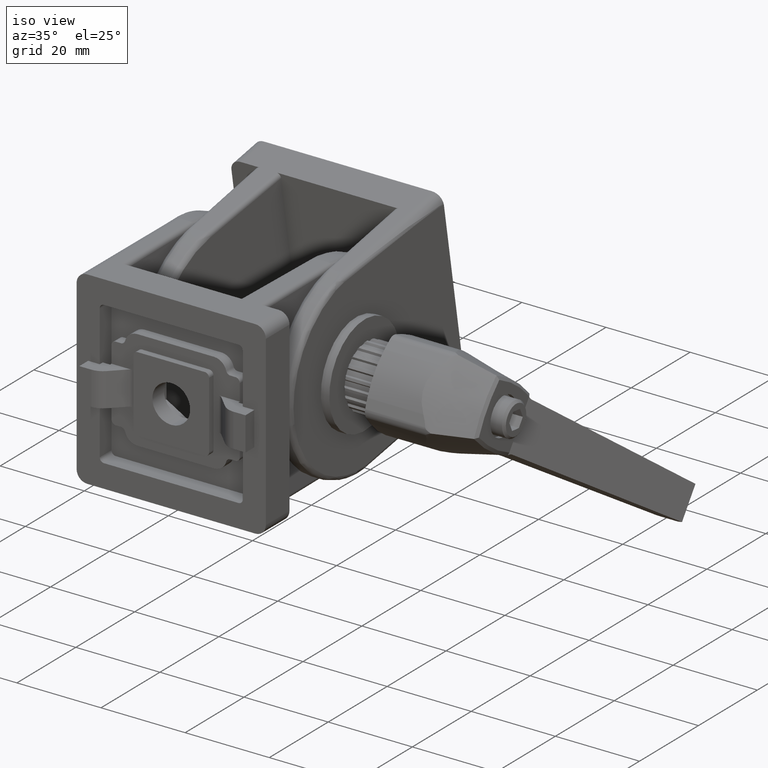
[diagram: clean part render]
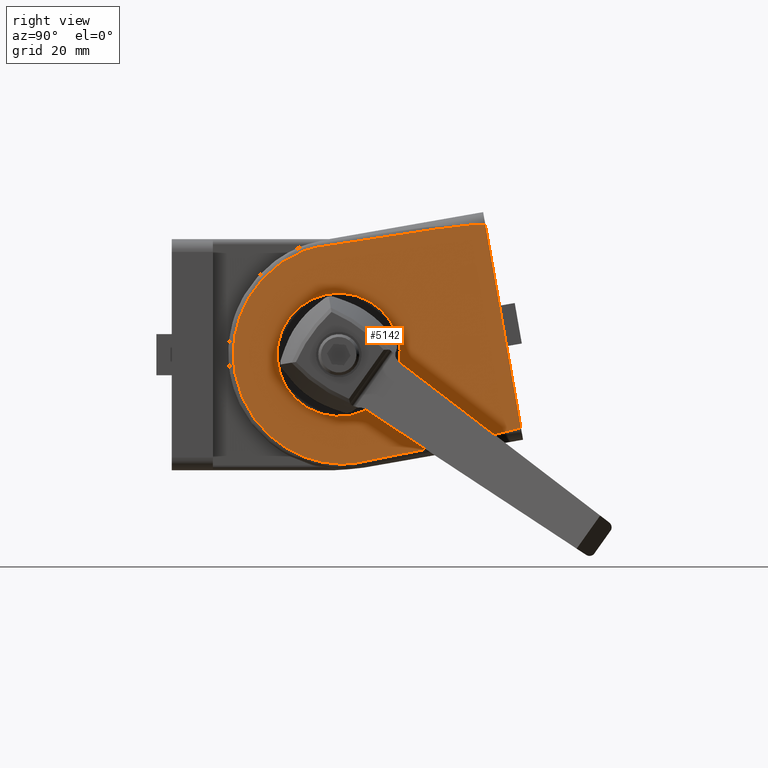
[diagram: tour spotlight — one face highlighted and labeled with its STEP entity id]
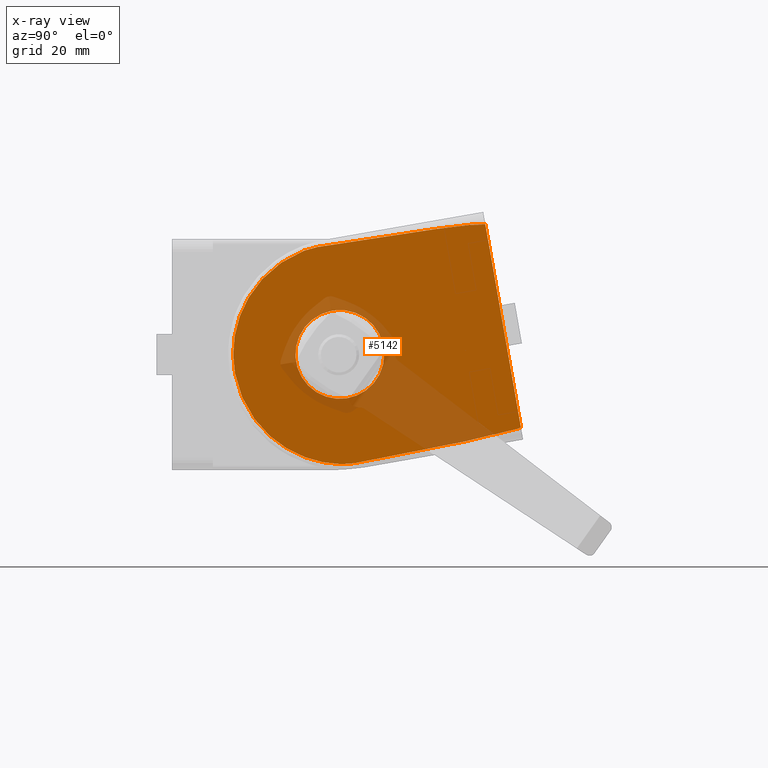
[diagram: x-ray of the same camera — body ghosted, this tour face saturated]
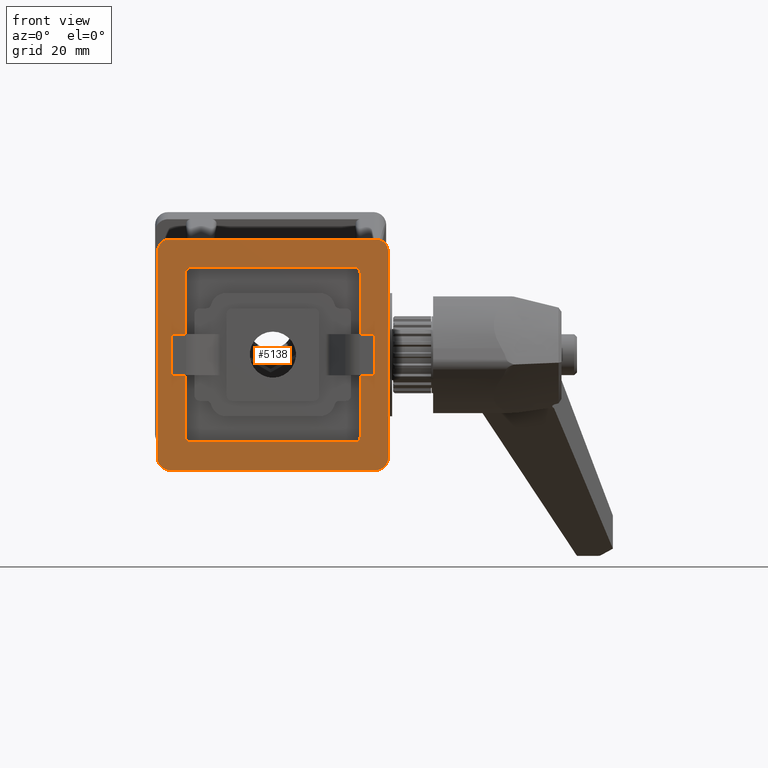
[diagram: tour spotlight — one face highlighted and labeled with its STEP entity id]
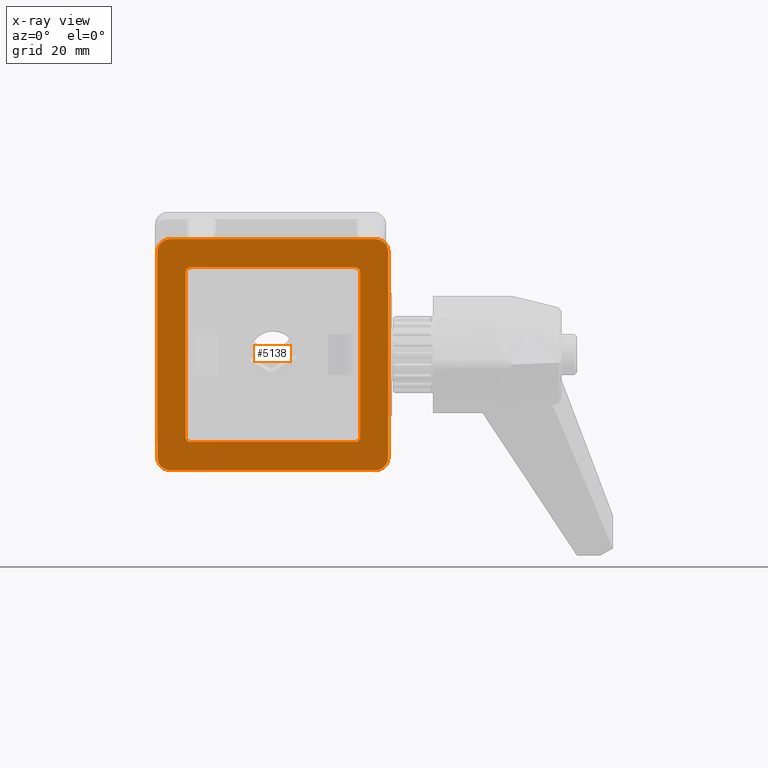
[diagram: x-ray of the same camera — body ghosted, this tour face saturated]
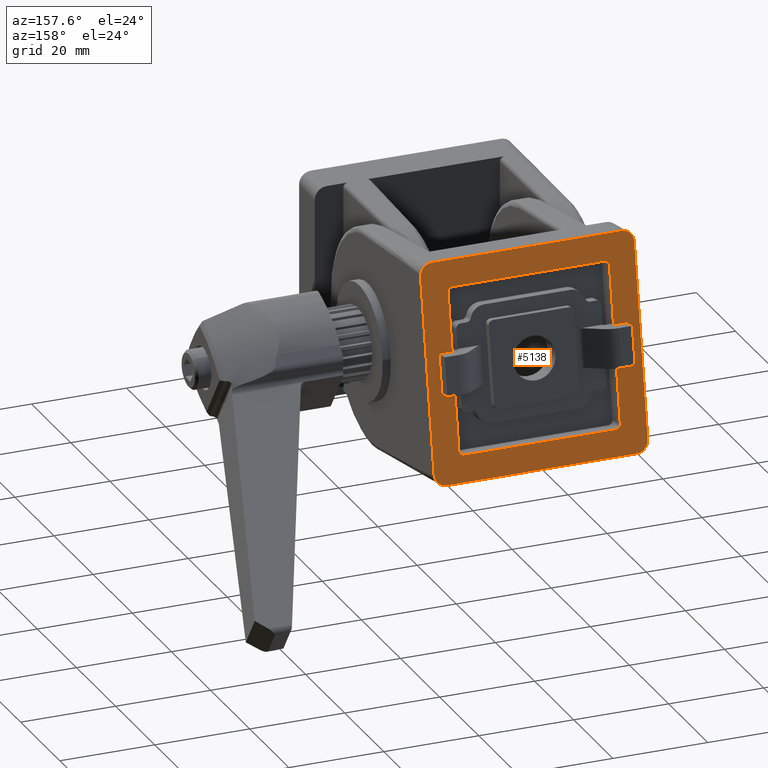
[diagram: tour spotlight — one face highlighted and labeled with its STEP entity id]
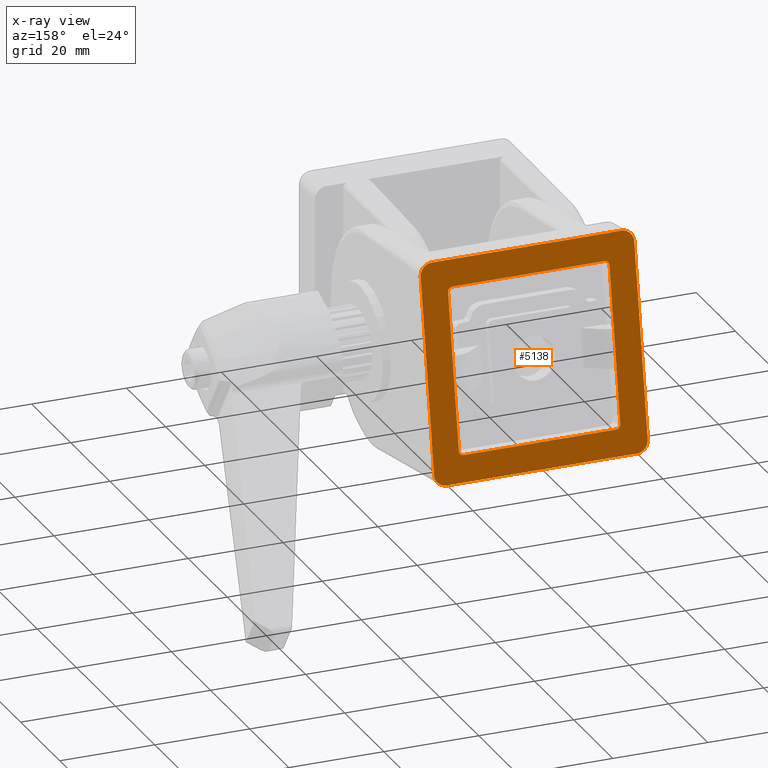
[diagram: x-ray of the same camera — body ghosted, this tour face saturated]
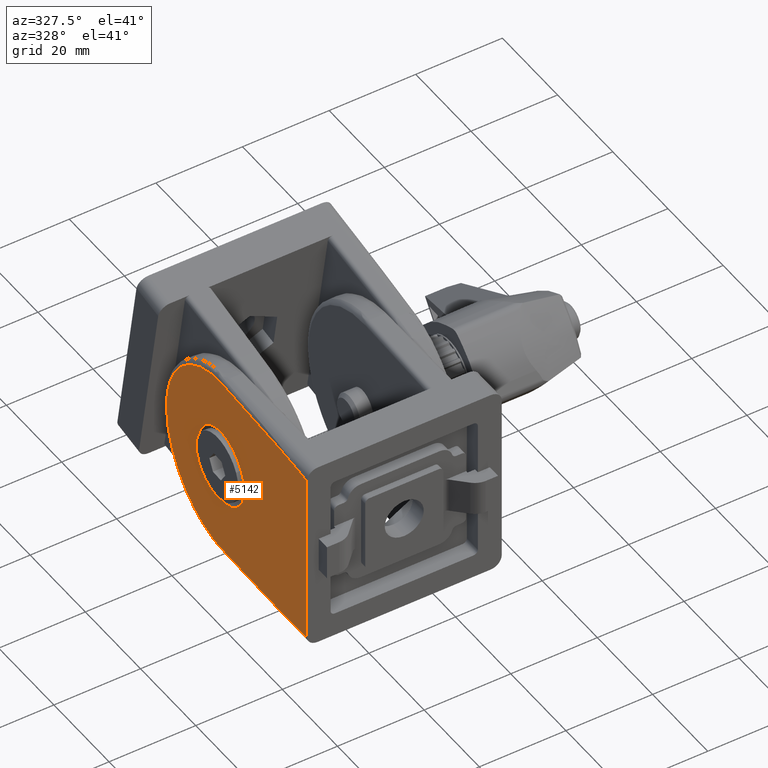
[diagram: tour spotlight — one face highlighted and labeled with its STEP entity id]
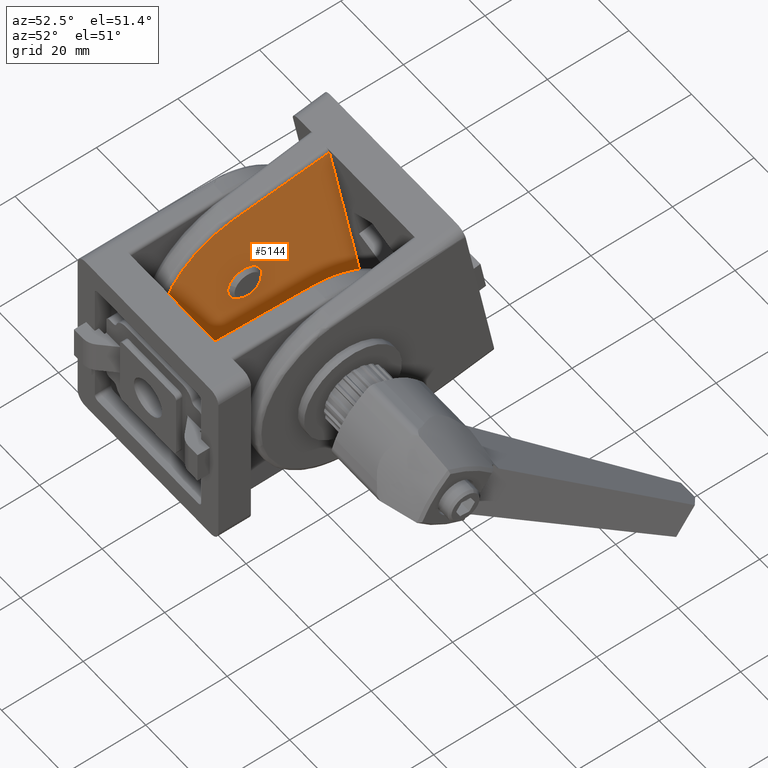
[diagram: tour spotlight — one face highlighted and labeled with its STEP entity id]
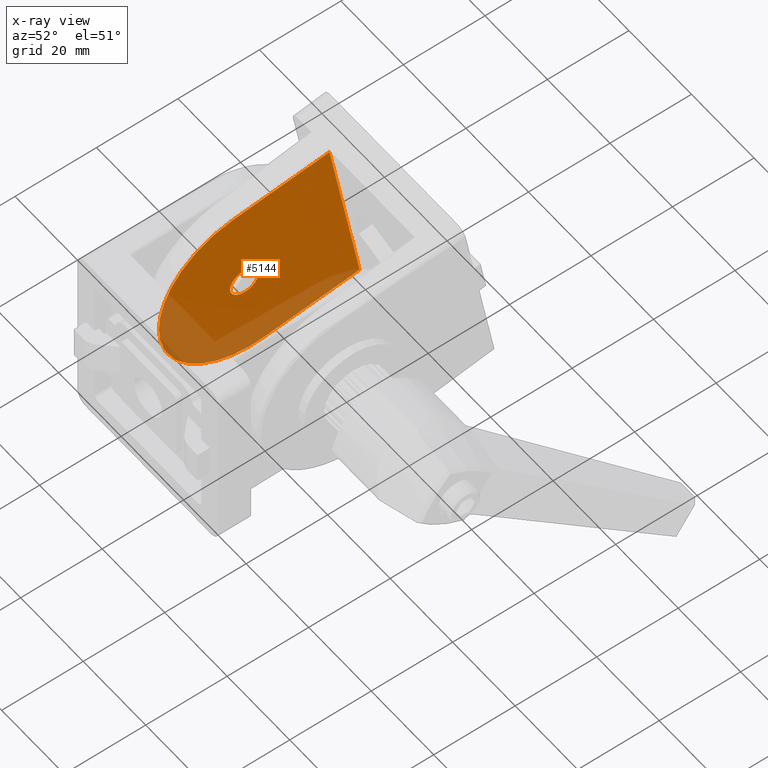
[diagram: x-ray of the same camera — body ghosted, this tour face saturated]
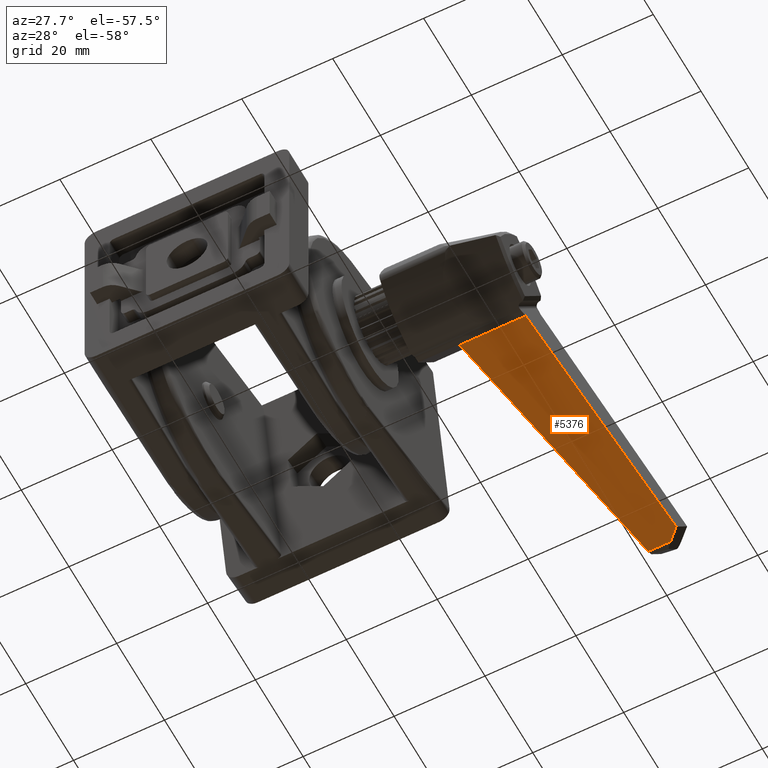
[diagram: tour spotlight — one face highlighted and labeled with its STEP entity id]
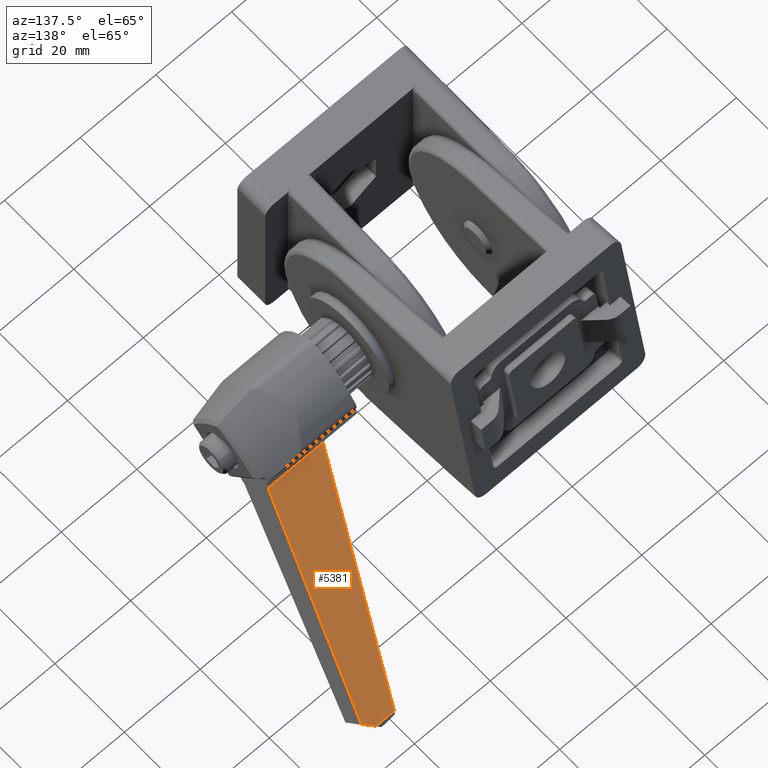
[diagram: tour spotlight — one face highlighted and labeled with its STEP entity id]
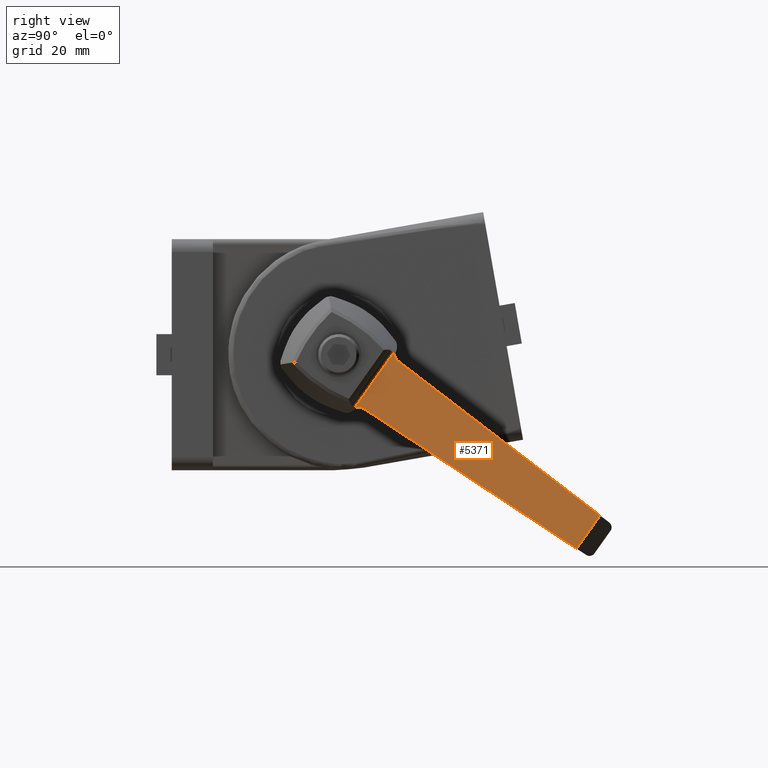
[diagram: tour spotlight — one face highlighted and labeled with its STEP entity id]
A machine part: a face-by-face anatomy tour. The part has 406 B-rep faces; the first image is the clean iso view, then the 8 largest visible faces are spotlighted one at a time (largest first), each with its STEP entity span.

Face 1 — right view, entity #5142. An x-ray twin of the same camera follows (body ghosted, this face saturated) — the face is partly hidden behind the body. In plain terms, the highlighted planar face has unit normal (-0.9997, 0.0258, 0.0045).
Definition (entity closure, byte-faithful):
#93=LINE('',#7723,#524);
#114=LINE('',#7900,#545);
#115=LINE('',#7901,#546);
#524=VECTOR('',#6044,40.);
#545=VECTOR('',#6081,0.0414000296418651);
#546=VECTOR('',#6082,0.041400029641764);
#951=PLANE('',#5466);
#1124=FACE_BOUND('',#1604,.T.);
#1161=ELLIPSE('',#5438,8.65785906220649,8.65192438071839);
#1303=FACE_OUTER_BOUND('',#1603,.T.);
#1603=EDGE_LOOP('',(#3627,#3628,#3629,#3630,#3631,#3632,#3633,#3634,#3635));
#1604=EDGE_LOOP('',(#3636));
#2209=B_SPLINE_CURVE_WITH_KNOTS('',3,(#7656,#7657,#7658,#7659,#7660,#7661,
#7662,#7663,#7664,#7665,#7666,#7667,#7668),.UNSPECIFIED.,.F.,.F.,(4,3,3,
3,4),(0.,0.343515024769679,0.68703004953936,1.03054507430904,1.37406009907872),
 .UNSPECIFIED.);
#2212=B_SPLINE_CURVE_WITH_KNOTS('',3,(#7844,#7845,#7846,#7847,#7848,#7849,
#7850,#7851,#7852,#7853,#7854,#7855,#7856),.UNSPECIFIED.,.F.,.F.,(4,3,3,
3,4),(0.0213792905390047,0.303796181903972,0.576731967984389,0.85004531668925,
1.13373998756873),.UNSPECIFIED.);
#2213=B_SPLINE_CURVE_WITH_KNOTS('',3,(#7858,#7859,#7860,#7861,#7862,#7863,
#7864),.UNSPECIFIED.,.F.,.F.,(4,3,4),(0.,0.00134844635158802,0.00269528262630313),
 .UNSPECIFIED.);
#2214=B_SPLINE_CURVE_WITH_KNOTS('',3,(#7865,#7866,#7867,#7868,#7869,#7870,
#7871,#7872,#7873,#7874,#7875,#7876,#7877),.UNSPECIFIED.,.F.,.F.,(4,3,3,
3,4),(4.90912520810087,5.25264023287055,5.59615525764023,5.93967028240991,
6.28318530717959),.UNSPECIFIED.);
#2215=B_SPLINE_CURVE_WITH_KNOTS('',3,(#7879,#7880,#7881,#7882,#7883,#7884,
#7885),.UNSPECIFIED.,.F.,.F.,(4,3,4),(2.16840434497101E-19,0.00134578005031071,
0.00269584533889386),.UNSPECIFIED.);
#2216=B_SPLINE_CURVE_WITH_KNOTS('',3,(#7887,#7888,#7889,#7890,#7891,#7892,
#7893,#7894,#7895,#7896,#7897,#7898,#7899),.UNSPECIFIED.,.F.,.F.,(4,3,3,
3,4),(5.1494453196105,5.43313999049106,5.70645333919743,5.97938912527825,
6.26180601664055),.UNSPECIFIED.);
#2254=VERTEX_POINT('',#7614);
#2258=VERTEX_POINT('',#7654);
#2259=VERTEX_POINT('',#7655);
#2272=VERTEX_POINT('',#7707);
#2279=VERTEX_POINT('',#7721);
#2300=VERTEX_POINT('',#7842);
#2301=VERTEX_POINT('',#7843);
#2302=VERTEX_POINT('',#7857);
#2303=VERTEX_POINT('',#7878);
#2304=VERTEX_POINT('',#7886);
#2780=EDGE_CURVE('',#2254,#2254,#1161,.T.);
#2784=EDGE_CURVE('',#2258,#2259,#2209,.T.);
#2807=EDGE_CURVE('',#2279,#2272,#93,.T.);
#2836=EDGE_CURVE('',#2300,#2301,#2212,.T.);
#2837=EDGE_CURVE('',#2301,#2302,#2213,.T.);
#2838=EDGE_CURVE('',#2302,#2258,#2214,.T.);
#2839=EDGE_CURVE('',#2259,#2303,#2215,.T.);
#2840=EDGE_CURVE('',#2303,#2304,#2216,.T.);
#2841=EDGE_CURVE('',#2304,#2272,#114,.T.);
#2842=EDGE_CURVE('',#2279,#2300,#115,.T.);
#3627=ORIENTED_EDGE('',*,*,#2836,.T.);
#3628=ORIENTED_EDGE('',*,*,#2837,.T.);
#3629=ORIENTED_EDGE('',*,*,#2838,.T.);
#3630=ORIENTED_EDGE('',*,*,#2784,.T.);
#3631=ORIENTED_EDGE('',*,*,#2839,.T.);
#3632=ORIENTED_EDGE('',*,*,#2840,.T.);
#3633=ORIENTED_EDGE('',*,*,#2841,.T.);
#3634=ORIENTED_EDGE('',*,*,#2807,.F.);
#3635=ORIENTED_EDGE('',*,*,#2842,.T.);
#3636=ORIENTED_EDGE('',*,*,#2780,.F.);
#5142=ADVANCED_FACE('',(#1303,#1124),#951,.F.);
#5438=AXIS2_PLACEMENT_3D('',#7615,#5993,#5994);
#5466=AXIS2_PLACEMENT_3D('',#7841,#6079,#6080);
#5993=DIRECTION('center_axis',(-0.999657324975557,0.0261769483078732,0.));
#5994=DIRECTION('ref_axis',(0.0261769483078732,0.999657324975557,4.25165061626543E-13));
#6044=DIRECTION('',(0.,0.,-1.));
#6079=DIRECTION('center_axis',(0.999657324975557,-0.0261769483078732,0.));
#6080=DIRECTION('ref_axis',(0.0261769483078744,0.999657324975557,0.));
#6081=DIRECTION('',(-0.016557174505295,-0.632292984675332,0.774552413657566));
#6082=DIRECTION('',(0.0165571745053305,0.632292984674879,0.774552413657935));
#7614=CARTESIAN_POINT('',(-21.6489575490014,32.5,31.1489575490014));
#7615=CARTESIAN_POINT('Origin',(-21.6548922301407,32.2733636708718,22.5));
#7654=CARTESIAN_POINT('',(-21.1114606893178,53.0261769483079,22.5));
#7655=CARTESIAN_POINT('',(-21.5644091634887,35.7287725787834,1.41473998342188));
#7656=CARTESIAN_POINT('Ctrl Pts',(-21.1114606893178,53.0261769483079,22.5));
#7657=CARTESIAN_POINT('Ctrl Pts',(-21.1114606893178,53.026176948308,20.0378818874206));
#7658=CARTESIAN_POINT('Ctrl Pts',(-21.1226408130282,52.599225249057,17.5768527815696));
#7659=CARTESIAN_POINT('Ctrl Pts',(-21.1443528905296,51.7700744611412,15.2588251305536));
#7660=CARTESIAN_POINT('Ctrl Pts',(-21.166064968031,50.9409236732253,12.9407974795376));
#7661=CARTESIAN_POINT('Ctrl Pts',(-21.1982989781202,49.7099564909539,10.7671016042559));
#7662=CARTESIAN_POINT('Ctrl Pts',(-21.2391861475836,48.1485384841309,8.86375796003937));
#7663=CARTESIAN_POINT('Ctrl Pts',(-21.280073317047,46.587120477308,6.96041431582288));
#7664=CARTESIAN_POINT('Ctrl Pts',(-21.3295947744228,44.695972317982,5.3283013903449));
#7665=CARTESIAN_POINT('Ctrl Pts',(-21.3848795032656,42.5847337008202,4.06204125854858));
#7666=CARTESIAN_POINT('Ctrl Pts',(-21.4401642321084,40.4734950836583,2.79578112675226));
#7667=CARTESIAN_POINT('Ctrl Pts',(-21.5011800223851,38.1433960602024,1.89600917736556));
#7668=CARTESIAN_POINT('Ctrl Pts',(-21.5644091634887,35.7287725787834,1.41473998342187));
#7707=CARTESIAN_POINT('',(-22.5,0.,2.50000000000001));
#7721=CARTESIAN_POINT('',(-22.5,0.,42.5));
#7723=CARTESIAN_POINT('',(-22.5,0.,45.));
#7841=CARTESIAN_POINT('Origin',(-22.5,0.,0.));
#7842=CARTESIAN_POINT('',(-22.4993145324847,0.02617694830781,42.5320664928845));
#7843=CARTESIAN_POINT('',(-21.6345688372559,33.0494827328289,43.859002344212));
#7844=CARTESIAN_POINT('Ctrl Pts',(-22.4993145324847,0.0261769483078172,
42.5320664928846));
#7845=CARTESIAN_POINT('Ctrl Pts',(-22.4964490693002,0.135604572494329,42.6660759254996));
#7846=CARTESIAN_POINT('Ctrl Pts',(-22.4748904735183,0.958894130015948,42.8065110669955));
#7847=CARTESIAN_POINT('Ctrl Pts',(-22.4328970327947,2.56255893182903,42.9425199902006));
#7848=CARTESIAN_POINT('Ctrl Pts',(-22.3923133669286,4.1123866038811,43.0739629155495));
#7849=CARTESIAN_POINT('Ctrl Pts',(-22.3326476078927,6.39093001424921,43.2018998911725));
#7850=CARTESIAN_POINT('Ctrl Pts',(-22.2563536261038,9.30447963240097,43.3189715577002));
#7851=CARTESIAN_POINT('Ctrl Pts',(-22.1799541039005,12.2220596763759,43.43620517399));
#7852=CARTESIAN_POINT('Ctrl Pts',(-22.0869625627287,15.7732633613817,43.5424190887683));
#7853=CARTESIAN_POINT('Ctrl Pts',(-21.9832493864784,19.7339097711816,43.6324957663955));
#7854=CARTESIAN_POINT('Ctrl Pts',(-21.875596849412,23.8449943011637,43.7259938466557));
#7855=CARTESIAN_POINT('Ctrl Pts',(-21.7565587960551,28.3908741565808,43.8020099265366));
#7856=CARTESIAN_POINT('Ctrl Pts',(-21.6345688372559,33.0494827328289,43.859002344212));
#7857=CARTESIAN_POINT('',(-21.5644091634887,35.7287725787834,43.5852600165781));
#7858=CARTESIAN_POINT('Ctrl Pts',(-21.6345688372559,33.0494827328289,43.8590023442133));
#7859=CARTESIAN_POINT('Ctrl Pts',(-21.6227653370103,33.5002402215218,43.8645168146057));
#7860=CARTESIAN_POINT('Ctrl Pts',(-21.6110253804481,33.948571074846,43.8399410368042));
#7861=CARTESIAN_POINT('Ctrl Pts',(-21.5993201507277,34.3955757635857,43.7921828221068));
#7862=CARTESIAN_POINT('Ctrl Pts',(-21.5876288973288,34.8420467181426,43.7444816318486));
#7863=CARTESIAN_POINT('Ctrl Pts',(-21.5759637965856,35.2875189430678,43.6732082161003));
#7864=CARTESIAN_POINT('Ctrl Pts',(-21.5644091634887,35.7287725787834,43.5852600165781));
#7865=CARTESIAN_POINT('Ctrl Pts',(-21.5644091634887,35.7287725787834,43.5852600165781));
#7866=CARTESIAN_POINT('Ctrl Pts',(-21.5011800223851,38.143396060202,43.1039908226242));
#7867=CARTESIAN_POINT('Ctrl Pts',(-21.4401642321085,40.4734950836552,42.2042188732427));
#7868=CARTESIAN_POINT('Ctrl Pts',(-21.3848795032656,42.5847337008202,40.9379587414514));
#7869=CARTESIAN_POINT('Ctrl Pts',(-21.3295947744227,44.6959723179852,39.6716986096601));
#7870=CARTESIAN_POINT('Ctrl Pts',(-21.2800733170466,46.5871204773226,38.0395856841822));
#7871=CARTESIAN_POINT('Ctrl Pts',(-21.2391861475836,48.148538484131,36.1362420399606));
#7872=CARTESIAN_POINT('Ctrl Pts',(-21.1982989781206,49.7099564909394,34.232898395739));
#7873=CARTESIAN_POINT('Ctrl Pts',(-21.1660649680311,50.9409236732223,32.0592025204664));
#7874=CARTESIAN_POINT('Ctrl Pts',(-21.1443528905296,51.7700744611412,29.7411748694464));
#7875=CARTESIAN_POINT('Ctrl Pts',(-21.1226408130281,52.59922524906,27.4231472184263));
#7876=CARTESIAN_POINT('Ctrl Pts',(-21.1114606893178,53.026176948308,24.9621181125824));
#7877=CARTESIAN_POINT('Ctrl Pts',(-21.1114606893178,53.0261769483079,22.5));
#7878=CARTESIAN_POINT('',(-21.6345688372555,33.0494827328478,1.14099765578772));
#7879=CARTESIAN_POINT('Ctrl Pts',(-21.5644091634887,35.7287725787836,1.41473998342068));
#7880=CARTESIAN_POINT('Ctrl Pts',(-21.5759486066012,35.2880990251699,1.32690740346595));
#7881=CARTESIAN_POINT('Ctrl Pts',(-21.5875475499272,34.8451532500779,1.25597458226563));
#7882=CARTESIAN_POINT('Ctrl Pts',(-21.599227727402,34.3991052679985,1.20819475498851));
#7883=CARTESIAN_POINT('Ctrl Pts',(-21.6109450969451,33.9516369781328,1.16026278699236));
#7884=CARTESIAN_POINT('Ctrl Pts',(-21.622757651651,33.5005337135513,1.13547959487729));
#7885=CARTESIAN_POINT('Ctrl Pts',(-21.6345688372555,33.0494827328478,1.14099765578772));
#7886=CARTESIAN_POINT('',(-22.4993145324847,0.0261769483078933,2.4679335071154));
#7887=CARTESIAN_POINT('Ctrl Pts',(-21.6345688372555,33.0494827328478,1.14099765578772));
#7888=CARTESIAN_POINT('Ctrl Pts',(-21.7565587960551,28.3908741565812,1.19799007346404));
#7889=CARTESIAN_POINT('Ctrl Pts',(-21.8755968494118,23.8449943011727,1.27400615334045));
#7890=CARTESIAN_POINT('Ctrl Pts',(-21.9832493864781,19.7339097711936,1.3675042336009));
#7891=CARTESIAN_POINT('Ctrl Pts',(-22.0869625627285,15.7732633613898,1.45758091122858));
#7892=CARTESIAN_POINT('Ctrl Pts',(-22.1799541039,12.2220596763961,1.56379482601137));
#7893=CARTESIAN_POINT('Ctrl Pts',(-22.2563536261037,9.30447963240695,1.68102844229533));
#7894=CARTESIAN_POINT('Ctrl Pts',(-22.3326476078926,6.39093001425291,1.79810010881657));
#7895=CARTESIAN_POINT('Ctrl Pts',(-22.3923133669285,4.11238660388623,1.92603708444899));
#7896=CARTESIAN_POINT('Ctrl Pts',(-22.4328970327947,2.56255893183074,2.05748000979697));
#7897=CARTESIAN_POINT('Ctrl Pts',(-22.4748904735178,0.958894130031601,2.19348893299971));
#7898=CARTESIAN_POINT('Ctrl Pts',(-22.4964490693003,0.135604572493484,2.33392407450161));
#7899=CARTESIAN_POINT('Ctrl Pts',(-22.4993145324847,0.0261769483078932,
2.4679335071154));
#7900=CARTESIAN_POINT('',(-22.4993145324847,0.0261769483078933,2.4679335071154));
#7901=CARTESIAN_POINT('',(-22.5,-2.22763424021249E-17,42.5));

Face 2 — front view, entity #5138. An x-ray twin of the same camera follows (body ghosted, this face saturated) — the face is partly hidden behind the body. In plain terms, the highlighted planar face has unit normal (0, 1, 0).
Definition (entity closure, byte-faithful):
#86=LINE('',#7690,#517);
#91=LINE('',#7713,#522);
#92=LINE('',#7718,#523);
#93=LINE('',#7723,#524);
#94=LINE('',#7726,#525);
#95=LINE('',#7730,#526);
#96=LINE('',#7734,#527);
#97=LINE('',#7738,#528);
#517=VECTOR('',#6013,40.);
#522=VECTOR('',#6034,40.);
#523=VECTOR('',#6039,40.);
#524=VECTOR('',#6044,40.);
#525=VECTOR('',#6045,32.);
#526=VECTOR('',#6048,32.);
#527=VECTOR('',#6051,32.);
#528=VECTOR('',#6054,32.);
#948=PLANE('',#5452);
#1123=FACE_BOUND('',#1599,.T.);
#1299=FACE_OUTER_BOUND('',#1598,.T.);
#1598=EDGE_LOOP('',(#3582,#3583,#3584,#3585,#3586,#3587,#3588,#3589,#3590,
#3591));
#1599=EDGE_LOOP('',(#3592,#3593,#3594,#3595,#3596,#3597,#3598,#3599));
#1988=CIRCLE('',#5453,2.5);
#1989=CIRCLE('',#5454,2.5);
#1990=CIRCLE('',#5455,2.5);
#1991=CIRCLE('',#5456,2.5);
#1992=CIRCLE('',#5457,2.5);
#1993=CIRCLE('',#5458,2.5);
#1994=CIRCLE('',#5459,1.);
#1995=CIRCLE('',#5460,1.);
#1996=CIRCLE('',#5461,1.);
#1997=CIRCLE('',#5462,1.);
#2264=VERTEX_POINT('',#7687);
#2265=VERTEX_POINT('',#7689);
#2272=VERTEX_POINT('',#7707);
#2273=VERTEX_POINT('',#7708);
#2274=VERTEX_POINT('',#7710);
#2275=VERTEX_POINT('',#7712);
#2276=VERTEX_POINT('',#7715);
#2277=VERTEX_POINT('',#7717);
#2278=VERTEX_POINT('',#7719);
#2279=VERTEX_POINT('',#7721);
#2280=VERTEX_POINT('',#7724);
#2281=VERTEX_POINT('',#7725);
#2282=VERTEX_POINT('',#7727);
#2283=VERTEX_POINT('',#7729);
#2284=VERTEX_POINT('',#7731);
#2285=VERTEX_POINT('',#7733);
#2286=VERTEX_POINT('',#7735);
#2287=VERTEX_POINT('',#7737);
#2790=EDGE_CURVE('',#2264,#2265,#86,.T.);
#2799=EDGE_CURVE('',#2272,#2273,#1988,.T.);
#2800=EDGE_CURVE('',#2273,#2274,#1989,.T.);
#2801=EDGE_CURVE('',#2274,#2275,#91,.T.);
#2802=EDGE_CURVE('',#2275,#2265,#1990,.T.);
#2803=EDGE_CURVE('',#2264,#2276,#1991,.T.);
#2804=EDGE_CURVE('',#2277,#2276,#92,.T.);
#2805=EDGE_CURVE('',#2277,#2278,#1992,.T.);
#2806=EDGE_CURVE('',#2278,#2279,#1993,.T.);
#2807=EDGE_CURVE('',#2279,#2272,#93,.T.);
#2808=EDGE_CURVE('',#2280,#2281,#94,.T.);
#2809=EDGE_CURVE('',#2280,#2282,#1994,.T.);
#2810=EDGE_CURVE('',#2283,#2282,#95,.T.);
#2811=EDGE_CURVE('',#2283,#2284,#1995,.T.);
#2812=EDGE_CURVE('',#2285,#2284,#96,.T.);
#2813=EDGE_CURVE('',#2285,#2286,#1996,.T.);
#2814=EDGE_CURVE('',#2287,#2286,#97,.T.);
#2815=EDGE_CURVE('',#2287,#2281,#1997,.T.);
#3582=ORIENTED_EDGE('',*,*,#2799,.T.);
#3583=ORIENTED_EDGE('',*,*,#2800,.T.);
#3584=ORIENTED_EDGE('',*,*,#2801,.T.);
#3585=ORIENTED_EDGE('',*,*,#2802,.T.);
#3586=ORIENTED_EDGE('',*,*,#2790,.F.);
#3587=ORIENTED_EDGE('',*,*,#2803,.T.);
#3588=ORIENTED_EDGE('',*,*,#2804,.F.);
#3589=ORIENTED_EDGE('',*,*,#2805,.T.);
#3590=ORIENTED_EDGE('',*,*,#2806,.T.);
#3591=ORIENTED_EDGE('',*,*,#2807,.T.);
#3592=ORIENTED_EDGE('',*,*,#2808,.F.);
#3593=ORIENTED_EDGE('',*,*,#2809,.T.);
#3594=ORIENTED_EDGE('',*,*,#2810,.F.);
#3595=ORIENTED_EDGE('',*,*,#2811,.T.);
#3596=ORIENTED_EDGE('',*,*,#2812,.F.);
#3597=ORIENTED_EDGE('',*,*,#2813,.T.);
#3598=ORIENTED_EDGE('',*,*,#2814,.F.);
#3599=ORIENTED_EDGE('',*,*,#2815,.T.);
#5138=ADVANCED_FACE('',(#1299,#1123),#948,.F.);
#5452=AXIS2_PLACEMENT_3D('',#7706,#6028,#6029);
#5453=AXIS2_PLACEMENT_3D('',#7709,#6030,#6031);
#5454=AXIS2_PLACEMENT_3D('',#7711,#6032,#6033);
#5455=AXIS2_PLACEMENT_3D('',#7714,#6035,#6036);
#5456=AXIS2_PLACEMENT_3D('',#7716,#6037,#6038);
#5457=AXIS2_PLACEMENT_3D('',#7720,#6040,#6041);
#5458=AXIS2_PLACEMENT_3D('',#7722,#6042,#6043);
#5459=AXIS2_PLACEMENT_3D('',#7728,#6046,#6047);
#5460=AXIS2_PLACEMENT_3D('',#7732,#6049,#6050);
#5461=AXIS2_PLACEMENT_3D('',#7736,#6052,#6053);
#5462=AXIS2_PLACEMENT_3D('',#7739,#6055,#6056);
#6013=DIRECTION('',(0.,0.,-1.));
#6028=DIRECTION('center_axis',(0.,1.,0.));
#6029=DIRECTION('ref_axis',(0.,0.,1.));
#6030=DIRECTION('center_axis',(0.,-1.,0.));
#6031=DIRECTION('ref_axis',(0.,0.,-1.));
#6032=DIRECTION('center_axis',(0.,-1.,0.));
#6033=DIRECTION('ref_axis',(0.,0.,-1.));
#6034=DIRECTION('',(1.,0.,0.));
#6035=DIRECTION('center_axis',(0.,-1.,0.));
#6036=DIRECTION('ref_axis',(0.,0.,1.));
#6037=DIRECTION('center_axis',(0.,-1.,0.));
#6038=DIRECTION('ref_axis',(0.,0.,-1.));
#6039=DIRECTION('',(1.,0.,0.));
#6040=DIRECTION('center_axis',(0.,-1.,0.));
#6041=DIRECTION('ref_axis',(0.,0.,-1.));
#6042=DIRECTION('center_axis',(0.,-1.,0.));
#6043=DIRECTION('ref_axis',(0.,0.,-1.));
#6044=DIRECTION('',(0.,0.,-1.));
#6045=DIRECTION('',(1.,0.,1.020425574104E-16));
#6046=DIRECTION('center_axis',(0.,1.,0.));
#6047=DIRECTION('ref_axis',(0.,0.,1.));
#6048=DIRECTION('',(0.,0.,-1.));
#6049=DIRECTION('center_axis',(0.,1.,0.));
#6050=DIRECTION('ref_axis',(0.,0.,1.));
#6051=DIRECTION('',(-1.,0.,0.));
#6052=DIRECTION('center_axis',(0.,1.,0.));
#6053=DIRECTION('ref_axis',(0.,0.,1.));
#6054=DIRECTION('',(0.,0.,1.));
#6055=DIRECTION('center_axis',(0.,1.,0.));
#6056=DIRECTION('ref_axis',(0.,0.,1.));
#7687=CARTESIAN_POINT('',(22.5,0.,42.5));
#7689=CARTESIAN_POINT('',(22.5,0.,2.50000000000002));
#7690=CARTESIAN_POINT('',(22.5,0.,45.));
#7706=CARTESIAN_POINT('Origin',(-22.5,0.,45.));
#7707=CARTESIAN_POINT('',(-22.5,0.,2.50000000000001));
#7708=CARTESIAN_POINT('',(-22.4994286791819,0.,2.44655584519233));
#7709=CARTESIAN_POINT('Origin',(-20.,0.,2.49999999999999));
#7710=CARTESIAN_POINT('',(-20.,0.,-6.50521303491303E-15));
#7711=CARTESIAN_POINT('Origin',(-20.,0.,2.49999999999999));
#7712=CARTESIAN_POINT('',(20.,0.,0.));
#7713=CARTESIAN_POINT('',(-22.5,0.,0.));
#7714=CARTESIAN_POINT('Origin',(20.,0.,2.5));
#7715=CARTESIAN_POINT('',(20.,0.,45.));
#7716=CARTESIAN_POINT('Origin',(20.,0.,42.5));
#7717=CARTESIAN_POINT('',(-20.,0.,45.));
#7718=CARTESIAN_POINT('',(-22.5,0.,45.));
#7719=CARTESIAN_POINT('',(-22.4994286791819,0.,42.5534441548076));
#7720=CARTESIAN_POINT('Origin',(-20.,0.,42.5));
#7721=CARTESIAN_POINT('',(-22.5,0.,42.5));
#7722=CARTESIAN_POINT('Origin',(-20.,0.,42.5));
#7723=CARTESIAN_POINT('',(-22.5,0.,45.));
#7724=CARTESIAN_POINT('',(-16.,0.,5.5));
#7725=CARTESIAN_POINT('',(16.,0.,5.50000000000001));
#7726=CARTESIAN_POINT('',(17.,0.,5.50000000000001));
#7727=CARTESIAN_POINT('',(-17.,0.,6.5));
#7728=CARTESIAN_POINT('Origin',(-16.,0.,6.5));
#7729=CARTESIAN_POINT('',(-17.,0.,38.5));
#7730=CARTESIAN_POINT('',(-17.,0.,5.5));
#7731=CARTESIAN_POINT('',(-16.,0.,39.5));
#7732=CARTESIAN_POINT('Origin',(-16.,0.,38.5));
#7733=CARTESIAN_POINT('',(16.,0.,39.5));
#7734=CARTESIAN_POINT('',(17.,0.,39.5));
#7735=CARTESIAN_POINT('',(17.,0.,38.5));
#7736=CARTESIAN_POINT('Origin',(16.,0.,38.5));
#7737=CARTESIAN_POINT('',(17.,0.,6.50000000000001));
#7738=CARTESIAN_POINT('',(17.,0.,5.50000000000001));
#7739=CARTESIAN_POINT('Origin',(16.,0.,6.50000000000001));

Face 3 — auxiliary view, entity #5138. An x-ray twin of the same camera follows (body ghosted, this face saturated) — the face is partly hidden behind the body. In plain terms, the highlighted planar face has unit normal (0, -0.985, -0.1726).
Definition (entity closure, byte-faithful):
#86=LINE('',#7690,#517);
#91=LINE('',#7713,#522);
#92=LINE('',#7718,#523);
#93=LINE('',#7723,#524);
#94=LINE('',#7726,#525);
#95=LINE('',#7730,#526);
#96=LINE('',#7734,#527);
#97=LINE('',#7738,#528);
#517=VECTOR('',#6013,40.);
#522=VECTOR('',#6034,40.);
#523=VECTOR('',#6039,40.);
#524=VECTOR('',#6044,40.);
#525=VECTOR('',#6045,32.);
#526=VECTOR('',#6048,32.);
#527=VECTOR('',#6051,32.);
#528=VECTOR('',#6054,32.);
#948=PLANE('',#5452);
#1123=FACE_BOUND('',#1599,.T.);
#1299=FACE_OUTER_BOUND('',#1598,.T.);
#1598=EDGE_LOOP('',(#3582,#3583,#3584,#3585,#3586,#3587,#3588,#3589,#3590,
#3591));
#1599=EDGE_LOOP('',(#3592,#3593,#3594,#3595,#3596,#3597,#3598,#3599));
#1988=CIRCLE('',#5453,2.5);
#1989=CIRCLE('',#5454,2.5);
#1990=CIRCLE('',#5455,2.5);
#1991=CIRCLE('',#5456,2.5);
#1992=CIRCLE('',#5457,2.5);
#1993=CIRCLE('',#5458,2.5);
#1994=CIRCLE('',#5459,1.);
#1995=CIRCLE('',#5460,1.);
#1996=CIRCLE('',#5461,1.);
#1997=CIRCLE('',#5462,1.);
#2264=VERTEX_POINT('',#7687);
#2265=VERTEX_POINT('',#7689);
#2272=VERTEX_POINT('',#7707);
#2273=VERTEX_POINT('',#7708);
#2274=VERTEX_POINT('',#7710);
#2275=VERTEX_POINT('',#7712);
#2276=VERTEX_POINT('',#7715);
#2277=VERTEX_POINT('',#7717);
#2278=VERTEX_POINT('',#7719);
#2279=VERTEX_POINT('',#7721);
#2280=VERTEX_POINT('',#7724);
#2281=VERTEX_POINT('',#7725);
#2282=VERTEX_POINT('',#7727);
#2283=VERTEX_POINT('',#7729);
#2284=VERTEX_POINT('',#7731);
#2285=VERTEX_POINT('',#7733);
#2286=VERTEX_POINT('',#7735);
#2287=VERTEX_POINT('',#7737);
#2790=EDGE_CURVE('',#2264,#2265,#86,.T.);
#2799=EDGE_CURVE('',#2272,#2273,#1988,.T.);
#2800=EDGE_CURVE('',#2273,#2274,#1989,.T.);
#2801=EDGE_CURVE('',#2274,#2275,#91,.T.);
#2802=EDGE_CURVE('',#2275,#2265,#1990,.T.);
#2803=EDGE_CURVE('',#2264,#2276,#1991,.T.);
#2804=EDGE_CURVE('',#2277,#2276,#92,.T.);
#2805=EDGE_CURVE('',#2277,#2278,#1992,.T.);
#2806=EDGE_CURVE('',#2278,#2279,#1993,.T.);
#2807=EDGE_CURVE('',#2279,#2272,#93,.T.);
#2808=EDGE_CURVE('',#2280,#2281,#94,.T.);
#2809=EDGE_CURVE('',#2280,#2282,#1994,.T.);
#2810=EDGE_CURVE('',#2283,#2282,#95,.T.);
#2811=EDGE_CURVE('',#2283,#2284,#1995,.T.);
#2812=EDGE_CURVE('',#2285,#2284,#96,.T.);
#2813=EDGE_CURVE('',#2285,#2286,#1996,.T.);
#2814=EDGE_CURVE('',#2287,#2286,#97,.T.);
#2815=EDGE_CURVE('',#2287,#2281,#1997,.T.);
#3582=ORIENTED_EDGE('',*,*,#2799,.T.);
#3583=ORIENTED_EDGE('',*,*,#2800,.T.);
#3584=ORIENTED_EDGE('',*,*,#2801,.T.);
#3585=ORIENTED_EDGE('',*,*,#2802,.T.);
#3586=ORIENTED_EDGE('',*,*,#2790,.F.);
#3587=ORIENTED_EDGE('',*,*,#2803,.T.);
#3588=ORIENTED_EDGE('',*,*,#2804,.F.);
#3589=ORIENTED_EDGE('',*,*,#2805,.T.);
#3590=ORIENTED_EDGE('',*,*,#2806,.T.);
#3591=ORIENTED_EDGE('',*,*,#2807,.T.);
#3592=ORIENTED_EDGE('',*,*,#2808,.F.);
#3593=ORIENTED_EDGE('',*,*,#2809,.T.);
#3594=ORIENTED_EDGE('',*,*,#2810,.F.);
#3595=ORIENTED_EDGE('',*,*,#2811,.T.);
#3596=ORIENTED_EDGE('',*,*,#2812,.F.);
#3597=ORIENTED_EDGE('',*,*,#2813,.T.);
#3598=ORIENTED_EDGE('',*,*,#2814,.F.);
#3599=ORIENTED_EDGE('',*,*,#2815,.T.);
#5138=ADVANCED_FACE('',(#1299,#1123),#948,.F.);
#5452=AXIS2_PLACEMENT_3D('',#7706,#6028,#6029);
#5453=AXIS2_PLACEMENT_3D('',#7709,#6030,#6031);
#5454=AXIS2_PLACEMENT_3D('',#7711,#6032,#6033);
#5455=AXIS2_PLACEMENT_3D('',#7714,#6035,#6036);
#5456=AXIS2_PLACEMENT_3D('',#7716,#6037,#6038);
#5457=AXIS2_PLACEMENT_3D('',#7720,#6040,#6041);
#5458=AXIS2_PLACEMENT_3D('',#7722,#6042,#6043);
#5459=AXIS2_PLACEMENT_3D('',#7728,#6046,#6047);
#5460=AXIS2_PLACEMENT_3D('',#7732,#6049,#6050);
#5461=AXIS2_PLACEMENT_3D('',#7736,#6052,#6053);
#5462=AXIS2_PLACEMENT_3D('',#7739,#6055,#6056);
#6013=DIRECTION('',(0.,0.,-1.));
#6028=DIRECTION('center_axis',(0.,1.,0.));
#6029=DIRECTION('ref_axis',(0.,0.,1.));
#6030=DIRECTION('center_axis',(0.,-1.,0.));
#6031=DIRECTION('ref_axis',(0.,0.,-1.));
#6032=DIRECTION('center_axis',(0.,-1.,0.));
#6033=DIRECTION('ref_axis',(0.,0.,-1.));
#6034=DIRECTION('',(1.,0.,0.));
#6035=DIRECTION('center_axis',(0.,-1.,0.));
#6036=DIRECTION('ref_axis',(0.,0.,1.));
#6037=DIRECTION('center_axis',(0.,-1.,0.));
#6038=DIRECTION('ref_axis',(0.,0.,-1.));
#6039=DIRECTION('',(1.,0.,0.));
#6040=DIRECTION('center_axis',(0.,-1.,0.));
#6041=DIRECTION('ref_axis',(0.,0.,-1.));
#6042=DIRECTION('center_axis',(0.,-1.,0.));
#6043=DIRECTION('ref_axis',(0.,0.,-1.));
#6044=DIRECTION('',(0.,0.,-1.));
#6045=DIRECTION('',(1.,0.,1.020425574104E-16));
#6046=DIRECTION('center_axis',(0.,1.,0.));
#6047=DIRECTION('ref_axis',(0.,0.,1.));
#6048=DIRECTION('',(0.,0.,-1.));
#6049=DIRECTION('center_axis',(0.,1.,0.));
#6050=DIRECTION('ref_axis',(0.,0.,1.));
#6051=DIRECTION('',(-1.,0.,0.));
#6052=DIRECTION('center_axis',(0.,1.,0.));
#6053=DIRECTION('ref_axis',(0.,0.,1.));
#6054=DIRECTION('',(0.,0.,1.));
#6055=DIRECTION('center_axis',(0.,1.,0.));
#6056=DIRECTION('ref_axis',(0.,0.,1.));
#7687=CARTESIAN_POINT('',(22.5,0.,42.5));
#7689=CARTESIAN_POINT('',(22.5,0.,2.50000000000002));
#7690=CARTESIAN_POINT('',(22.5,0.,45.));
#7706=CARTESIAN_POINT('Origin',(-22.5,0.,45.));
#7707=CARTESIAN_POINT('',(-22.5,0.,2.50000000000001));
#7708=CARTESIAN_POINT('',(-22.4994286791819,0.,2.44655584519233));
#7709=CARTESIAN_POINT('Origin',(-20.,0.,2.49999999999999));
#7710=CARTESIAN_POINT('',(-20.,0.,-6.50521303491303E-15));
#7711=CARTESIAN_POINT('Origin',(-20.,0.,2.49999999999999));
#7712=CARTESIAN_POINT('',(20.,0.,0.));
#7713=CARTESIAN_POINT('',(-22.5,0.,0.));
#7714=CARTESIAN_POINT('Origin',(20.,0.,2.5));
#7715=CARTESIAN_POINT('',(20.,0.,45.));
#7716=CARTESIAN_POINT('Origin',(20.,0.,42.5));
#7717=CARTESIAN_POINT('',(-20.,0.,45.));
#7718=CARTESIAN_POINT('',(-22.5,0.,45.));
#7719=CARTESIAN_POINT('',(-22.4994286791819,0.,42.5534441548076));
#7720=CARTESIAN_POINT('Origin',(-20.,0.,42.5));
#7721=CARTESIAN_POINT('',(-22.5,0.,42.5));
#7722=CARTESIAN_POINT('Origin',(-20.,0.,42.5));
#7723=CARTESIAN_POINT('',(-22.5,0.,45.));
#7724=CARTESIAN_POINT('',(-16.,0.,5.5));
#7725=CARTESIAN_POINT('',(16.,0.,5.50000000000001));
#7726=CARTESIAN_POINT('',(17.,0.,5.50000000000001));
#7727=CARTESIAN_POINT('',(-17.,0.,6.5));
#7728=CARTESIAN_POINT('Origin',(-16.,0.,6.5));
#7729=CARTESIAN_POINT('',(-17.,0.,38.5));
#7730=CARTESIAN_POINT('',(-17.,0.,5.5));
#7731=CARTESIAN_POINT('',(-16.,0.,39.5));
#7732=CARTESIAN_POINT('Origin',(-16.,0.,38.5));
#7733=CARTESIAN_POINT('',(16.,0.,39.5));
#7734=CARTESIAN_POINT('',(17.,0.,39.5));
#7735=CARTESIAN_POINT('',(17.,0.,38.5));
#7736=CARTESIAN_POINT('Origin',(16.,0.,38.5));
#7737=CARTESIAN_POINT('',(17.,0.,6.50000000000001));
#7738=CARTESIAN_POINT('',(17.,0.,5.50000000000001));
#7739=CARTESIAN_POINT('Origin',(16.,0.,6.50000000000001));

Face 4 — auxiliary view, entity #5142. In plain terms, the highlighted planar face has unit normal (0.9997, -0.0262, 0).
Definition (entity closure, byte-faithful):
#93=LINE('',#7723,#524);
#114=LINE('',#7900,#545);
#115=LINE('',#7901,#546);
#524=VECTOR('',#6044,40.);
#545=VECTOR('',#6081,0.0414000296418651);
#546=VECTOR('',#6082,0.041400029641764);
#951=PLANE('',#5466);
#1124=FACE_BOUND('',#1604,.T.);
#1161=ELLIPSE('',#5438,8.65785906220649,8.65192438071839);
#1303=FACE_OUTER_BOUND('',#1603,.T.);
#1603=EDGE_LOOP('',(#3627,#3628,#3629,#3630,#3631,#3632,#3633,#3634,#3635));
#1604=EDGE_LOOP('',(#3636));
#2209=B_SPLINE_CURVE_WITH_KNOTS('',3,(#7656,#7657,#7658,#7659,#7660,#7661,
#7662,#7663,#7664,#7665,#7666,#7667,#7668),.UNSPECIFIED.,.F.,.F.,(4,3,3,
3,4),(0.,0.343515024769679,0.68703004953936,1.03054507430904,1.37406009907872),
 .UNSPECIFIED.);
#2212=B_SPLINE_CURVE_WITH_KNOTS('',3,(#7844,#7845,#7846,#7847,#7848,#7849,
#7850,#7851,#7852,#7853,#7854,#7855,#7856),.UNSPECIFIED.,.F.,.F.,(4,3,3,
3,4),(0.0213792905390047,0.303796181903972,0.576731967984389,0.85004531668925,
1.13373998756873),.UNSPECIFIED.);
#2213=B_SPLINE_CURVE_WITH_KNOTS('',3,(#7858,#7859,#7860,#7861,#7862,#7863,
#7864),.UNSPECIFIED.,.F.,.F.,(4,3,4),(0.,0.00134844635158802,0.00269528262630313),
 .UNSPECIFIED.);
#2214=B_SPLINE_CURVE_WITH_KNOTS('',3,(#7865,#7866,#7867,#7868,#7869,#7870,
#7871,#7872,#7873,#7874,#7875,#7876,#7877),.UNSPECIFIED.,.F.,.F.,(4,3,3,
3,4),(4.90912520810087,5.25264023287055,5.59615525764023,5.93967028240991,
6.28318530717959),.UNSPECIFIED.);
#2215=B_SPLINE_CURVE_WITH_KNOTS('',3,(#7879,#7880,#7881,#7882,#7883,#7884,
#7885),.UNSPECIFIED.,.F.,.F.,(4,3,4),(2.16840434497101E-19,0.00134578005031071,
0.00269584533889386),.UNSPECIFIED.);
#2216=B_SPLINE_CURVE_WITH_KNOTS('',3,(#7887,#7888,#7889,#7890,#7891,#7892,
#7893,#7894,#7895,#7896,#7897,#7898,#7899),.UNSPECIFIED.,.F.,.F.,(4,3,3,
3,4),(5.1494453196105,5.43313999049106,5.70645333919743,5.97938912527825,
6.26180601664055),.UNSPECIFIED.);
#2254=VERTEX_POINT('',#7614);
#2258=VERTEX_POINT('',#7654);
#2259=VERTEX_POINT('',#7655);
#2272=VERTEX_POINT('',#7707);
#2279=VERTEX_POINT('',#7721);
#2300=VERTEX_POINT('',#7842);
#2301=VERTEX_POINT('',#7843);
#2302=VERTEX_POINT('',#7857);
#2303=VERTEX_POINT('',#7878);
#2304=VERTEX_POINT('',#7886);
#2780=EDGE_CURVE('',#2254,#2254,#1161,.T.);
#2784=EDGE_CURVE('',#2258,#2259,#2209,.T.);
#2807=EDGE_CURVE('',#2279,#2272,#93,.T.);
#2836=EDGE_CURVE('',#2300,#2301,#2212,.T.);
#2837=EDGE_CURVE('',#2301,#2302,#2213,.T.);
#2838=EDGE_CURVE('',#2302,#2258,#2214,.T.);
#2839=EDGE_CURVE('',#2259,#2303,#2215,.T.);
#2840=EDGE_CURVE('',#2303,#2304,#2216,.T.);
#2841=EDGE_CURVE('',#2304,#2272,#114,.T.);
#2842=EDGE_CURVE('',#2279,#2300,#115,.T.);
#3627=ORIENTED_EDGE('',*,*,#2836,.T.);
#3628=ORIENTED_EDGE('',*,*,#2837,.T.);
#3629=ORIENTED_EDGE('',*,*,#2838,.T.);
#3630=ORIENTED_EDGE('',*,*,#2784,.T.);
#3631=ORIENTED_EDGE('',*,*,#2839,.T.);
#3632=ORIENTED_EDGE('',*,*,#2840,.T.);
#3633=ORIENTED_EDGE('',*,*,#2841,.T.);
#3634=ORIENTED_EDGE('',*,*,#2807,.F.);
#3635=ORIENTED_EDGE('',*,*,#2842,.T.);
#3636=ORIENTED_EDGE('',*,*,#2780,.F.);
#5142=ADVANCED_FACE('',(#1303,#1124),#951,.F.);
#5438=AXIS2_PLACEMENT_3D('',#7615,#5993,#5994);
#5466=AXIS2_PLACEMENT_3D('',#7841,#6079,#6080);
#5993=DIRECTION('center_axis',(-0.999657324975557,0.0261769483078732,0.));
#5994=DIRECTION('ref_axis',(0.0261769483078732,0.999657324975557,4.25165061626543E-13));
#6044=DIRECTION('',(0.,0.,-1.));
#6079=DIRECTION('center_axis',(0.999657324975557,-0.0261769483078732,0.));
#6080=DIRECTION('ref_axis',(0.0261769483078744,0.999657324975557,0.));
#6081=DIRECTION('',(-0.016557174505295,-0.632292984675332,0.774552413657566));
#6082=DIRECTION('',(0.0165571745053305,0.632292984674879,0.774552413657935));
#7614=CARTESIAN_POINT('',(-21.6489575490014,32.5,31.1489575490014));
#7615=CARTESIAN_POINT('Origin',(-21.6548922301407,32.2733636708718,22.5));
#7654=CARTESIAN_POINT('',(-21.1114606893178,53.0261769483079,22.5));
#7655=CARTESIAN_POINT('',(-21.5644091634887,35.7287725787834,1.41473998342188));
#7656=CARTESIAN_POINT('Ctrl Pts',(-21.1114606893178,53.0261769483079,22.5));
#7657=CARTESIAN_POINT('Ctrl Pts',(-21.1114606893178,53.026176948308,20.0378818874206));
#7658=CARTESIAN_POINT('Ctrl Pts',(-21.1226408130282,52.599225249057,17.5768527815696));
#7659=CARTESIAN_POINT('Ctrl Pts',(-21.1443528905296,51.7700744611412,15.2588251305536));
#7660=CARTESIAN_POINT('Ctrl Pts',(-21.166064968031,50.9409236732253,12.9407974795376));
#7661=CARTESIAN_POINT('Ctrl Pts',(-21.1982989781202,49.7099564909539,10.7671016042559));
#7662=CARTESIAN_POINT('Ctrl Pts',(-21.2391861475836,48.1485384841309,8.86375796003937));
#7663=CARTESIAN_POINT('Ctrl Pts',(-21.280073317047,46.587120477308,6.96041431582288));
#7664=CARTESIAN_POINT('Ctrl Pts',(-21.3295947744228,44.695972317982,5.3283013903449));
#7665=CARTESIAN_POINT('Ctrl Pts',(-21.3848795032656,42.5847337008202,4.06204125854858));
#7666=CARTESIAN_POINT('Ctrl Pts',(-21.4401642321084,40.4734950836583,2.79578112675226));
#7667=CARTESIAN_POINT('Ctrl Pts',(-21.5011800223851,38.1433960602024,1.89600917736556));
#7668=CARTESIAN_POINT('Ctrl Pts',(-21.5644091634887,35.7287725787834,1.41473998342187));
#7707=CARTESIAN_POINT('',(-22.5,0.,2.50000000000001));
#7721=CARTESIAN_POINT('',(-22.5,0.,42.5));
#7723=CARTESIAN_POINT('',(-22.5,0.,45.));
#7841=CARTESIAN_POINT('Origin',(-22.5,0.,0.));
#7842=CARTESIAN_POINT('',(-22.4993145324847,0.02617694830781,42.5320664928845));
#7843=CARTESIAN_POINT('',(-21.6345688372559,33.0494827328289,43.859002344212));
#7844=CARTESIAN_POINT('Ctrl Pts',(-22.4993145324847,0.0261769483078172,
42.5320664928846));
#7845=CARTESIAN_POINT('Ctrl Pts',(-22.4964490693002,0.135604572494329,42.6660759254996));
#7846=CARTESIAN_POINT('Ctrl Pts',(-22.4748904735183,0.958894130015948,42.8065110669955));
#7847=CARTESIAN_POINT('Ctrl Pts',(-22.4328970327947,2.56255893182903,42.9425199902006));
#7848=CARTESIAN_POINT('Ctrl Pts',(-22.3923133669286,4.1123866038811,43.0739629155495));
#7849=CARTESIAN_POINT('Ctrl Pts',(-22.3326476078927,6.39093001424921,43.2018998911725));
#7850=CARTESIAN_POINT('Ctrl Pts',(-22.2563536261038,9.30447963240097,43.3189715577002));
#7851=CARTESIAN_POINT('Ctrl Pts',(-22.1799541039005,12.2220596763759,43.43620517399));
#7852=CARTESIAN_POINT('Ctrl Pts',(-22.0869625627287,15.7732633613817,43.5424190887683));
#7853=CARTESIAN_POINT('Ctrl Pts',(-21.9832493864784,19.7339097711816,43.6324957663955));
#7854=CARTESIAN_POINT('Ctrl Pts',(-21.875596849412,23.8449943011637,43.7259938466557));
#7855=CARTESIAN_POINT('Ctrl Pts',(-21.7565587960551,28.3908741565808,43.8020099265366));
#7856=CARTESIAN_POINT('Ctrl Pts',(-21.6345688372559,33.0494827328289,43.859002344212));
#7857=CARTESIAN_POINT('',(-21.5644091634887,35.7287725787834,43.5852600165781));
#7858=CARTESIAN_POINT('Ctrl Pts',(-21.6345688372559,33.0494827328289,43.8590023442133));
#7859=CARTESIAN_POINT('Ctrl Pts',(-21.6227653370103,33.5002402215218,43.8645168146057));
#7860=CARTESIAN_POINT('Ctrl Pts',(-21.6110253804481,33.948571074846,43.8399410368042));
#7861=CARTESIAN_POINT('Ctrl Pts',(-21.5993201507277,34.3955757635857,43.7921828221068));
#7862=CARTESIAN_POINT('Ctrl Pts',(-21.5876288973288,34.8420467181426,43.7444816318486));
#7863=CARTESIAN_POINT('Ctrl Pts',(-21.5759637965856,35.2875189430678,43.6732082161003));
#7864=CARTESIAN_POINT('Ctrl Pts',(-21.5644091634887,35.7287725787834,43.5852600165781));
#7865=CARTESIAN_POINT('Ctrl Pts',(-21.5644091634887,35.7287725787834,43.5852600165781));
#7866=CARTESIAN_POINT('Ctrl Pts',(-21.5011800223851,38.143396060202,43.1039908226242));
#7867=CARTESIAN_POINT('Ctrl Pts',(-21.4401642321085,40.4734950836552,42.2042188732427));
#7868=CARTESIAN_POINT('Ctrl Pts',(-21.3848795032656,42.5847337008202,40.9379587414514));
#7869=CARTESIAN_POINT('Ctrl Pts',(-21.3295947744227,44.6959723179852,39.6716986096601));
#7870=CARTESIAN_POINT('Ctrl Pts',(-21.2800733170466,46.5871204773226,38.0395856841822));
#7871=CARTESIAN_POINT('Ctrl Pts',(-21.2391861475836,48.148538484131,36.1362420399606));
#7872=CARTESIAN_POINT('Ctrl Pts',(-21.1982989781206,49.7099564909394,34.232898395739));
#7873=CARTESIAN_POINT('Ctrl Pts',(-21.1660649680311,50.9409236732223,32.0592025204664));
#7874=CARTESIAN_POINT('Ctrl Pts',(-21.1443528905296,51.7700744611412,29.7411748694464));
#7875=CARTESIAN_POINT('Ctrl Pts',(-21.1226408130281,52.59922524906,27.4231472184263));
#7876=CARTESIAN_POINT('Ctrl Pts',(-21.1114606893178,53.026176948308,24.9621181125824));
#7877=CARTESIAN_POINT('Ctrl Pts',(-21.1114606893178,53.0261769483079,22.5));
#7878=CARTESIAN_POINT('',(-21.6345688372555,33.0494827328478,1.14099765578772));
#7879=CARTESIAN_POINT('Ctrl Pts',(-21.5644091634887,35.7287725787836,1.41473998342068));
#7880=CARTESIAN_POINT('Ctrl Pts',(-21.5759486066012,35.2880990251699,1.32690740346595));
#7881=CARTESIAN_POINT('Ctrl Pts',(-21.5875475499272,34.8451532500779,1.25597458226563));
#7882=CARTESIAN_POINT('Ctrl Pts',(-21.599227727402,34.3991052679985,1.20819475498851));
#7883=CARTESIAN_POINT('Ctrl Pts',(-21.6109450969451,33.9516369781328,1.16026278699236));
#7884=CARTESIAN_POINT('Ctrl Pts',(-21.622757651651,33.5005337135513,1.13547959487729));
#7885=CARTESIAN_POINT('Ctrl Pts',(-21.6345688372555,33.0494827328478,1.14099765578772));
#7886=CARTESIAN_POINT('',(-22.4993145324847,0.0261769483078933,2.4679335071154));
#7887=CARTESIAN_POINT('Ctrl Pts',(-21.6345688372555,33.0494827328478,1.14099765578772));
#7888=CARTESIAN_POINT('Ctrl Pts',(-21.7565587960551,28.3908741565812,1.19799007346404));
#7889=CARTESIAN_POINT('Ctrl Pts',(-21.8755968494118,23.8449943011727,1.27400615334045));
#7890=CARTESIAN_POINT('Ctrl Pts',(-21.9832493864781,19.7339097711936,1.3675042336009));
#7891=CARTESIAN_POINT('Ctrl Pts',(-22.0869625627285,15.7732633613898,1.45758091122858));
#7892=CARTESIAN_POINT('Ctrl Pts',(-22.1799541039,12.2220596763961,1.56379482601137));
#7893=CARTESIAN_POINT('Ctrl Pts',(-22.2563536261037,9.30447963240695,1.68102844229533));
#7894=CARTESIAN_POINT('Ctrl Pts',(-22.3326476078926,6.39093001425291,1.79810010881657));
#7895=CARTESIAN_POINT('Ctrl Pts',(-22.3923133669285,4.11238660388623,1.92603708444899));
#7896=CARTESIAN_POINT('Ctrl Pts',(-22.4328970327947,2.56255893183074,2.05748000979697));
#7897=CARTESIAN_POINT('Ctrl Pts',(-22.4748904735178,0.958894130031601,2.19348893299971));
#7898=CARTESIAN_POINT('Ctrl Pts',(-22.4964490693003,0.135604572493484,2.33392407450161));
#7899=CARTESIAN_POINT('Ctrl Pts',(-22.4993145324847,0.0261769483078932,
2.4679335071154));
#7900=CARTESIAN_POINT('',(-22.4993145324847,0.0261769483078933,2.4679335071154));
#7901=CARTESIAN_POINT('',(-22.5,-2.22763424021249E-17,42.5));

Face 5 — auxiliary view, entity #5144. An x-ray twin of the same camera follows (body ghosted, this face saturated) — the face is partly hidden behind the body. In plain terms, the highlighted planar face has unit normal (-0.9997, 0.0258, 0.0045).
Definition (entity closure, byte-faithful):
#116=LINE('',#7961,#547);
#117=LINE('',#7963,#548);
#118=LINE('',#7964,#549);
#547=VECTOR('',#6087,23.5342415451046);
#548=VECTOR('',#6088,43.);
#549=VECTOR('',#6089,23.5342415451046);
#952=PLANE('',#5468);
#1125=FACE_BOUND('',#1607,.T.);
#1159=ELLIPSE('',#5434,3.40116549446894,3.4);
#1305=FACE_OUTER_BOUND('',#1606,.T.);
#1606=EDGE_LOOP('',(#3641,#3642,#3643,#3644,#3645));
#1607=EDGE_LOOP('',(#3646));
#2208=B_SPLINE_CURVE_WITH_KNOTS('',3,(#7559,#7560,#7561,#7562,#7563,#7564,
#7565,#7566,#7567,#7568,#7569,#7570,#7571,#7572,#7573,#7574,#7575,#7576,
#7577,#7578,#7579,#7580,#7581,#7582,#7583),.UNSPECIFIED.,.F.,.F.,(4,3,3,
3,3,3,3,3,4),(0.,0.196349540849362,0.392699081698723,0.589048622548085,
0.785398163397448,0.98174770424681,1.17809724509617,1.37444678594554,1.5707963267949),
 .UNSPECIFIED.);
#2217=B_SPLINE_CURVE_WITH_KNOTS('',3,(#7935,#7936,#7937,#7938,#7939,#7940,
#7941,#7942,#7943,#7944,#7945,#7946,#7947,#7948,#7949,#7950,#7951,#7952,
#7953,#7954,#7955,#7956,#7957,#7958,#7959),.UNSPECIFIED.,.F.,.F.,(4,3,3,
3,3,3,3,3,4),(4.71238898038469,4.90873852123405,5.10508806208341,5.30143760293278,
5.49778714378214,5.6941366846315,5.89048622548086,6.08683576633022,6.28318530717959),
 .UNSPECIFIED.);
#2247=VERTEX_POINT('',#7557);
#2248=VERTEX_POINT('',#7558);
#2251=VERTEX_POINT('',#7607);
#2305=VERTEX_POINT('',#7934);
#2306=VERTEX_POINT('',#7960);
#2307=VERTEX_POINT('',#7962);
#2773=EDGE_CURVE('',#2247,#2248,#2208,.T.);
#2777=EDGE_CURVE('',#2251,#2251,#1159,.T.);
#2844=EDGE_CURVE('',#2305,#2247,#2217,.T.);
#2845=EDGE_CURVE('',#2248,#2306,#116,.T.);
#2846=EDGE_CURVE('',#2307,#2306,#117,.T.);
#2847=EDGE_CURVE('',#2307,#2305,#118,.T.);
#3641=ORIENTED_EDGE('',*,*,#2844,.T.);
#3642=ORIENTED_EDGE('',*,*,#2773,.T.);
#3643=ORIENTED_EDGE('',*,*,#2845,.T.);
#3644=ORIENTED_EDGE('',*,*,#2846,.F.);
#3645=ORIENTED_EDGE('',*,*,#2847,.T.);
#3646=ORIENTED_EDGE('',*,*,#2777,.T.);
#5144=ADVANCED_FACE('',(#1305,#1125),#952,.F.);
#5434=AXIS2_PLACEMENT_3D('',#7608,#5985,#5986);
#5468=AXIS2_PLACEMENT_3D('',#7933,#6085,#6086);
#5985=DIRECTION('center_axis',(0.999657324975557,-0.0261769483078662,0.));
#5986=DIRECTION('ref_axis',(0.0261769483078662,0.999657324975557,-1.36731275826319E-12));
#6085=DIRECTION('center_axis',(0.999657324975557,-0.0261769483078657,0.));
#6086=DIRECTION('ref_axis',(0.0261769483078655,0.999657324975558,0.));
#6087=DIRECTION('',(-0.0261769483078657,-0.999657324975557,0.));
#6088=DIRECTION('',(0.,0.,-1.));
#6089=DIRECTION('',(0.0261769483078657,0.999657324975557,0.));
#7557=CARTESIAN_POINT('',(11.6790519381284,53.0261769483079,22.5));
#7558=CARTESIAN_POINT('',(11.116054624391,31.5261769483079,1.));
#7559=CARTESIAN_POINT('Ctrl Pts',(11.6790519381284,53.0261769483079,22.5));
#7560=CARTESIAN_POINT('Ctrl Pts',(11.6790519381284,53.0261769483079,21.0928123282821));
#7561=CARTESIAN_POINT('Ctrl Pts',(11.6754228079655,52.8875860587995,19.685691375756));
#7562=CARTESIAN_POINT('Ctrl Pts',(11.6682341026112,52.6130604769773,18.3055580766532));
#7563=CARTESIAN_POINT('Ctrl Pts',(11.6610453972569,52.3385348951551,16.9254247775504));
#7564=CARTESIAN_POINT('Ctrl Pts',(11.6502974722052,51.928088196792,15.5723633447441));
#7565=CARTESIAN_POINT('Ctrl Pts',(11.6361963194118,51.3895868973005,14.2723062041505));
#7566=CARTESIAN_POINT('Ctrl Pts',(11.6220951666184,50.851085597809,12.972249063557));
#7567=CARTESIAN_POINT('Ctrl Pts',(11.6046414834104,50.1845563270361,11.7252605053319));
#7568=CARTESIAN_POINT('Ctrl Pts',(11.5841697825716,49.4027736128126,10.5552399900785));
#7569=CARTESIAN_POINT('Ctrl Pts',(11.5636980817328,48.620990898589,9.38521947482514));
#7570=CARTESIAN_POINT('Ctrl Pts',(11.5402093756259,47.7239934014839,8.29222486215563));
#7571=CARTESIAN_POINT('Ctrl Pts',(11.5141538427245,46.7289727438186,7.29720420448919));
#7572=CARTESIAN_POINT('Ctrl Pts',(11.4880983098232,45.7339520861533,6.30218354682274));
#7573=CARTESIAN_POINT('Ctrl Pts',(11.4594772386203,44.6409574734822,5.40518604971262));
#7574=CARTESIAN_POINT('Ctrl Pts',(11.4288391731735,43.4709369582293,4.62340333549527));
#7575=CARTESIAN_POINT('Ctrl Pts',(11.3982011077268,42.3009164429765,3.84162062127793));
#7576=CARTESIAN_POINT('Ctrl Pts',(11.3655475631434,41.0539278847518,3.1750913504994));
#7577=CARTESIAN_POINT('Ctrl Pts',(11.3315043688244,39.7538707441573,2.63659005100732));
#7578=CARTESIAN_POINT('Ctrl Pts',(11.2974611745053,38.4538136035628,2.09808875151525));
#7579=CARTESIAN_POINT('Ctrl Pts',(11.2620300139475,37.1007521707554,1.68764205315414));
#7580=CARTESIAN_POINT('Ctrl Pts',(11.2258899516223,35.7206188716546,1.41311647133054));
#7581=CARTESIAN_POINT('Ctrl Pts',(11.189749889297,34.3404855725538,1.13859088950695));
#7582=CARTESIAN_POINT('Ctrl Pts',(11.1529031303957,32.9333646200241,1.00000000000244));
#7583=CARTESIAN_POINT('Ctrl Pts',(11.116054624391,31.5261769483079,1.));
#7607=CARTESIAN_POINT('',(11.1415550784449,32.5,19.1));
#7608=CARTESIAN_POINT('Origin',(11.1415550784449,32.5,22.5));
#7933=CARTESIAN_POINT('Origin',(11.7045523921823,54.,45.));
#7934=CARTESIAN_POINT('',(11.116054624391,31.5261769483079,44.));
#7935=CARTESIAN_POINT('Ctrl Pts',(11.116054624391,31.5261769483079,44.));
#7936=CARTESIAN_POINT('Ctrl Pts',(11.1529031303958,32.9333646200264,43.9999999999902));
#7937=CARTESIAN_POINT('Ctrl Pts',(11.1897498892969,34.3404855725507,43.8614091104917));
#7938=CARTESIAN_POINT('Ctrl Pts',(11.2258899516223,35.7206188716547,43.5868835286695));
#7939=CARTESIAN_POINT('Ctrl Pts',(11.2620300139476,37.1007521707586,43.3123579468472));
#7940=CARTESIAN_POINT('Ctrl Pts',(11.2974611745053,38.4538136035628,42.9019112484896));
#7941=CARTESIAN_POINT('Ctrl Pts',(11.3315043688244,39.7538707441573,42.3634099489927));
#7942=CARTESIAN_POINT('Ctrl Pts',(11.3655475631434,41.0539278847517,41.8249086494957));
#7943=CARTESIAN_POINT('Ctrl Pts',(11.3982011077267,42.3009164429744,41.1583793787251));
#7944=CARTESIAN_POINT('Ctrl Pts',(11.4288391731735,43.4709369582293,40.3765966645047));
#7945=CARTESIAN_POINT('Ctrl Pts',(11.4594772386203,44.6409574734842,39.5948139502844));
#7946=CARTESIAN_POINT('Ctrl Pts',(11.4880983098232,45.7339520861536,38.6978164531759));
#7947=CARTESIAN_POINT('Ctrl Pts',(11.5141538427245,46.7289727438186,37.7027957955108));
#7948=CARTESIAN_POINT('Ctrl Pts',(11.5402093756259,47.7239934014837,36.7077751378457));
#7949=CARTESIAN_POINT('Ctrl Pts',(11.5636980817329,48.6209908985921,35.6147805251715));
#7950=CARTESIAN_POINT('Ctrl Pts',(11.5841697825716,49.4027736128126,34.4447600099215));
#7951=CARTESIAN_POINT('Ctrl Pts',(11.6046414834103,50.1845563270331,33.2747394946714));
#7952=CARTESIAN_POINT('Ctrl Pts',(11.6220951666185,50.851085597812,32.0277509364415));
#7953=CARTESIAN_POINT('Ctrl Pts',(11.6361963194118,51.3895868973005,30.7276937958494));
#7954=CARTESIAN_POINT('Ctrl Pts',(11.6502974722051,51.9280881967891,29.4276366552573));
#7955=CARTESIAN_POINT('Ctrl Pts',(11.6610453972568,52.3385348951519,28.0745752224487));
#7956=CARTESIAN_POINT('Ctrl Pts',(11.6682341026112,52.6130604769773,26.6944419233468));
#7957=CARTESIAN_POINT('Ctrl Pts',(11.6754228079656,52.8875860588028,25.3143086242448));
#7958=CARTESIAN_POINT('Ctrl Pts',(11.6790519381284,53.0261769483079,23.9071876717171));
#7959=CARTESIAN_POINT('Ctrl Pts',(11.6790519381284,53.0261769483079,22.5));
#7960=CARTESIAN_POINT('',(10.5,8.,1.00000000000001));
#7961=CARTESIAN_POINT('',(11.7045523921823,54.,1.));
#7962=CARTESIAN_POINT('',(10.5,8.,44.));
#7963=CARTESIAN_POINT('',(10.5,8.,45.));
#7964=CARTESIAN_POINT('',(11.1153691568757,31.5,44.));

Face 6 — auxiliary view, entity #5376. In plain terms, the highlighted planar face has unit normal (-0, 0.5498, 0.8353).
Definition (entity closure, byte-faithful):
#481=LINE('',#10049,#912);
#486=LINE('',#10134,#917);
#488=LINE('',#10141,#919);
#489=LINE('',#10143,#920);
#490=LINE('',#10144,#921);
#912=VECTOR('',#7310,50.801000721874);
#917=VECTOR('',#7329,14.8093405115944);
#919=VECTOR('',#7337,54.3693997479863);
#920=VECTOR('',#7338,4.9199552168521);
#921=VECTOR('',#7339,3.12299873261066);
#1070=PLANE('',#5906);
#1175=ELLIPSE('',#5907,1.20075777858207,1.19999999999999);
#1537=FACE_OUTER_BOUND('',#1866,.T.);
#1866=EDGE_LOOP('',(#4903,#4904,#4905,#4906,#4907,#4908));
#2739=VERTEX_POINT('',#10046);
#2740=VERTEX_POINT('',#10048);
#2751=VERTEX_POINT('',#10127);
#2752=VERTEX_POINT('',#10138);
#2753=VERTEX_POINT('',#10140);
#2754=VERTEX_POINT('',#10142);
#3489=EDGE_CURVE('',#2739,#2740,#481,.T.);
#3506=EDGE_CURVE('',#2739,#2751,#486,.T.);
#3508=EDGE_CURVE('',#2751,#2752,#1175,.T.);
#3509=EDGE_CURVE('',#2753,#2752,#488,.T.);
#3510=EDGE_CURVE('',#2754,#2753,#489,.T.);
#3511=EDGE_CURVE('',#2740,#2754,#490,.T.);
#4903=ORIENTED_EDGE('',*,*,#3508,.T.);
#4904=ORIENTED_EDGE('',*,*,#3509,.F.);
#4905=ORIENTED_EDGE('',*,*,#3510,.F.);
#4906=ORIENTED_EDGE('',*,*,#3511,.F.);
#4907=ORIENTED_EDGE('',*,*,#3489,.F.);
#4908=ORIENTED_EDGE('',*,*,#3506,.T.);
#5376=ADVANCED_FACE('',(#1537),#1070,.F.);
#5906=AXIS2_PLACEMENT_3D('',#10137,#7333,#7334);
#5907=AXIS2_PLACEMENT_3D('',#10139,#7335,#7336);
#7310=DIRECTION('',(0.973830645756862,0.224623613869546,-0.0346136602652497));
#7329=DIRECTION('',(0.,-1.,0.));
#7333=DIRECTION('center_axis',(-0.0355213879348288,0.,-0.999368916366315));
#7334=DIRECTION('ref_axis',(-0.999368916366315,0.,0.0355213879348288));
#7335=DIRECTION('center_axis',(-0.0355213879348288,0.,-0.999368916366315));
#7336=DIRECTION('ref_axis',(0.999368916366315,0.,-0.0355213879348288));
#7337=DIRECTION('',(-0.939168908875141,-0.341829527778819,0.0333816497613135));
#7338=DIRECTION('',(0.,-1.,0.));
#7339=DIRECTION('',(0.706883553788417,-0.706883553788414,-0.025125341130447));
#10046=CARTESIAN_POINT('',(10.1734578848598,31.5888956296633,5.71134582588805));
#10048=CARTESIAN_POINT('',(59.6450292229372,43.,3.9529372457664));
#10049=CARTESIAN_POINT('',(10.1734578848598,31.5888956296632,5.71134582588806));
#10127=CARTESIAN_POINT('',(10.1734578848598,16.7795551180689,5.71134582588805));
#10134=CARTESIAN_POINT('',(10.1734578848598,31.5888956296633,5.71134582588805));
#10137=CARTESIAN_POINT('Origin',(10.1734578848598,43.1,5.71134582588805));
#10138=CARTESIAN_POINT('',(10.7905758280092,17.2873820990914,5.68941109737973));
#10139=CARTESIAN_POINT('Origin',(11.201,16.1597509541484,5.67482305487374));
#10140=CARTESIAN_POINT('',(61.8526256655218,35.8724483405634,3.87447083725961));
#10141=CARTESIAN_POINT('',(61.8526256655218,35.8724483405635,3.8744708372596));
#10142=CARTESIAN_POINT('',(61.8526256655218,40.7924035574155,3.87447083725961));
#10143=CARTESIAN_POINT('',(61.8526256655218,40.7924035574155,3.87447083725961));
#10144=CARTESIAN_POINT('',(59.6450292229372,43.,3.9529372457664));

Face 7 — auxiliary view, entity #5381. In plain terms, the highlighted planar face has unit normal (0, -0.6077, -0.7942).
Definition (entity closure, byte-faithful):
#483=LINE('',#10052,#914);
#494=LINE('',#10161,#925);
#497=LINE('',#10170,#928);
#499=LINE('',#10174,#930);
#500=LINE('',#10175,#931);
#914=VECTOR('',#7312,50.801000721874);
#925=VECTOR('',#7349,54.3693997479863);
#928=VECTOR('',#7360,14.8093405115944);
#930=VECTOR('',#7364,3.12299873261075);
#931=VECTOR('',#7365,4.91995521685199);
#1073=PLANE('',#5915);
#1176=ELLIPSE('',#5909,1.20075777858207,1.19999999999999);
#1542=FACE_OUTER_BOUND('',#1871,.T.);
#1871=EDGE_LOOP('',(#4940,#4941,#4942,#4943,#4944,#4945));
#2737=VERTEX_POINT('',#10042);
#2741=VERTEX_POINT('',#10050);
#2756=VERTEX_POINT('',#10149);
#2757=VERTEX_POINT('',#10156);
#2758=VERTEX_POINT('',#10160);
#2761=VERTEX_POINT('',#10173);
#3491=EDGE_CURVE('',#2741,#2737,#483,.T.);
#3515=EDGE_CURVE('',#2757,#2756,#1176,.T.);
#3517=EDGE_CURVE('',#2757,#2758,#494,.T.);
#3522=EDGE_CURVE('',#2737,#2756,#497,.T.);
#3524=EDGE_CURVE('',#2761,#2741,#499,.T.);
#3525=EDGE_CURVE('',#2761,#2758,#500,.T.);
#4940=ORIENTED_EDGE('',*,*,#3515,.T.);
#4941=ORIENTED_EDGE('',*,*,#3522,.F.);
#4942=ORIENTED_EDGE('',*,*,#3491,.F.);
#4943=ORIENTED_EDGE('',*,*,#3524,.F.);
#4944=ORIENTED_EDGE('',*,*,#3525,.T.);
#4945=ORIENTED_EDGE('',*,*,#3517,.F.);
#5381=ADVANCED_FACE('',(#1542),#1073,.F.);
#5909=AXIS2_PLACEMENT_3D('',#10157,#7344,#7345);
#5915=AXIS2_PLACEMENT_3D('',#10172,#7362,#7363);
#7312=DIRECTION('',(-0.973830645756862,-0.224623613869546,-0.0346136602652497));
#7344=DIRECTION('center_axis',(-0.0355213879348288,0.,0.999368916366315));
#7345=DIRECTION('ref_axis',(-0.999368916366315,0.,-0.0355213879348288));
#7349=DIRECTION('',(0.939168908875141,0.341829527778819,0.0333816497613135));
#7360=DIRECTION('',(0.,-1.,0.));
#7362=DIRECTION('center_axis',(-0.0355213879348288,0.,0.999368916366315));
#7363=DIRECTION('ref_axis',(0.999368916366315,0.,0.0355213879348288));
#7364=DIRECTION('',(-0.706883553788415,0.706883553788415,-0.025125341130447));
#7365=DIRECTION('',(0.,-1.,0.));
#10042=CARTESIAN_POINT('',(10.1734578848598,31.5888956296633,-5.71134582588805));
#10050=CARTESIAN_POINT('',(59.6450292229372,43.,-3.9529372457664));
#10052=CARTESIAN_POINT('',(59.6450292229372,43.,-3.9529372457664));
#10149=CARTESIAN_POINT('',(10.1734578848598,16.7795551180689,-5.71134582588805));
#10156=CARTESIAN_POINT('',(10.7905758280092,17.2873820990914,-5.68941109737973));
#10157=CARTESIAN_POINT('Origin',(11.201,16.1597509541484,-5.67482305487374));
#10160=CARTESIAN_POINT('',(61.8526256655218,35.8724483405634,-3.87447083725961));
#10161=CARTESIAN_POINT('',(10.7905758280092,17.2873820990915,-5.68941109737974));
#10170=CARTESIAN_POINT('',(10.1734578848598,31.5888956296633,-5.71134582588805));
#10172=CARTESIAN_POINT('Origin',(61.8526256655218,43.1,-3.87447083725961));
#10173=CARTESIAN_POINT('',(61.8526256655218,40.7924035574154,-3.87447083725961));
#10174=CARTESIAN_POINT('',(61.8526256655218,40.7924035574154,-3.8744708372596));
#10175=CARTESIAN_POINT('',(61.8526256655218,40.7924035574154,-3.87447083725961));

Face 8 — right view, entity #5371. In plain terms, the highlighted planar face has unit normal (-0.9744, 0.1832, -0.1302).
Definition (entity closure, byte-faithful):
#479=LINE('',#10033,#910);
#481=LINE('',#10049,#912);
#482=LINE('',#10051,#913);
#483=LINE('',#10052,#914);
#910=VECTOR('',#7298,12.712615175228);
#912=VECTOR('',#7310,50.801000721874);
#913=VECTOR('',#7311,7.9058744915328);
#914=VECTOR('',#7312,50.801000721874);
#1068=PLANE('',#5894);
#1169=ELLIPSE('',#5884,31.8731235747589,31.0202850800713);
#1171=ELLIPSE('',#5895,1.53938588615445,1.5);
#1172=ELLIPSE('',#5896,31.8731235747589,31.0202850800713);
#1173=ELLIPSE('',#5897,1.53938588615447,1.50000000000001);
#1532=FACE_OUTER_BOUND('',#1861,.T.);
#1861=EDGE_LOOP('',(#4866,#4867,#4868,#4869,#4870,#4871,#4872,#4873));
#2723=VERTEX_POINT('',#9930);
#2724=VERTEX_POINT('',#9943);
#2735=VERTEX_POINT('',#10020);
#2737=VERTEX_POINT('',#10042);
#2738=VERTEX_POINT('',#10044);
#2739=VERTEX_POINT('',#10046);
#2740=VERTEX_POINT('',#10048);
#2741=VERTEX_POINT('',#10050);
#3468=EDGE_CURVE('',#2724,#2723,#1169,.F.);
#3483=EDGE_CURVE('',#2735,#2723,#479,.T.);
#3486=EDGE_CURVE('',#2724,#2737,#1171,.F.);
#3487=EDGE_CURVE('',#2735,#2738,#1172,.F.);
#3488=EDGE_CURVE('',#2739,#2738,#1173,.F.);
#3489=EDGE_CURVE('',#2739,#2740,#481,.T.);
#3490=EDGE_CURVE('',#2740,#2741,#482,.T.);
#3491=EDGE_CURVE('',#2741,#2737,#483,.T.);
#4866=ORIENTED_EDGE('',*,*,#3486,.F.);
#4867=ORIENTED_EDGE('',*,*,#3468,.T.);
#4868=ORIENTED_EDGE('',*,*,#3483,.F.);
#4869=ORIENTED_EDGE('',*,*,#3487,.T.);
#4870=ORIENTED_EDGE('',*,*,#3488,.F.);
#4871=ORIENTED_EDGE('',*,*,#3489,.T.);
#4872=ORIENTED_EDGE('',*,*,#3490,.T.);
#4873=ORIENTED_EDGE('',*,*,#3491,.T.);
#5371=ADVANCED_FACE('',(#1532),#1068,.F.);
#5884=AXIS2_PLACEMENT_3D('',#9944,#7279,#7280);
#5894=AXIS2_PLACEMENT_3D('',#10041,#7302,#7303);
#5895=AXIS2_PLACEMENT_3D('',#10043,#7304,#7305);
#5896=AXIS2_PLACEMENT_3D('',#10045,#7306,#7307);
#5897=AXIS2_PLACEMENT_3D('',#10047,#7308,#7309);
#7279=DIRECTION('center_axis',(0.224758296295466,-0.974414546405358,2.04253725990501E-31));
#7280=DIRECTION('ref_axis',(-0.974414546405358,-0.224758296295466,-3.09035966998073E-15));
#7298=DIRECTION('',(0.,0.,-1.));
#7302=DIRECTION('center_axis',(0.224758296295466,-0.974414546405358,0.));
#7303=DIRECTION('ref_axis',(0.,0.,-1.));
#7304=DIRECTION('center_axis',(0.224758296295466,-0.974414546405358,0.));
#7305=DIRECTION('ref_axis',(-0.974414546405358,-0.224758296295466,0.));
#7306=DIRECTION('center_axis',(0.224758296295466,-0.974414546405358,0.));
#7307=DIRECTION('ref_axis',(-0.974414546405358,-0.224758296295466,-3.09035966998074E-15));
#7308=DIRECTION('center_axis',(0.224758296295466,-0.974414546405358,0.));
#7309=DIRECTION('ref_axis',(-0.974414546405358,-0.224758296295466,0.));
#7310=DIRECTION('',(0.973830645756862,0.224623613869546,-0.0346136602652497));
#7311=DIRECTION('',(0.,0.,-1.));
#7312=DIRECTION('',(-0.973830645756862,-0.224623613869546,-0.0346136602652497));
#9930=CARTESIAN_POINT('',(8.51260426094841,31.2058034105625,-6.35630758761401));
#9943=CARTESIAN_POINT('',(9.20710960608307,31.3659978973099,-6.11023833602648));
#9944=CARTESIAN_POINT('Origin',(-1.52270184596336,28.8910613824251,23.));
#10020=CARTESIAN_POINT('',(8.51260426094841,31.2058034105625,6.35630758761401));
#10033=CARTESIAN_POINT('',(8.51260426094841,31.2058034105625,6.35630758761401));
#10041=CARTESIAN_POINT('Origin',(59.6450292229372,43.,10.001));
#10042=CARTESIAN_POINT('',(10.1734578848598,31.5888956296633,-5.71134582588805));
#10043=CARTESIAN_POINT('Origin',(10.2267399667621,31.601185665763,-7.21039920043753));
#10044=CARTESIAN_POINT('',(9.20710960608161,31.3659978973095,6.11023833602705));
#10045=CARTESIAN_POINT('Origin',(-1.52270184596337,28.8910613824251,-23.));
#10046=CARTESIAN_POINT('',(10.1734578848598,31.5888956296633,5.71134582588805));
#10047=CARTESIAN_POINT('Origin',(10.2267399667621,31.601185665763,7.21039920043754));
#10048=CARTESIAN_POINT('',(59.6450292229372,43.,3.9529372457664));
#10049=CARTESIAN_POINT('',(10.1734578848598,31.5888956296632,5.71134582588806));
#10050=CARTESIAN_POINT('',(59.6450292229372,43.,-3.9529372457664));
#10051=CARTESIAN_POINT('',(59.6450292229372,43.,3.9529372457664));
#10052=CARTESIAN_POINT('',(59.6450292229372,43.,-3.9529372457664));